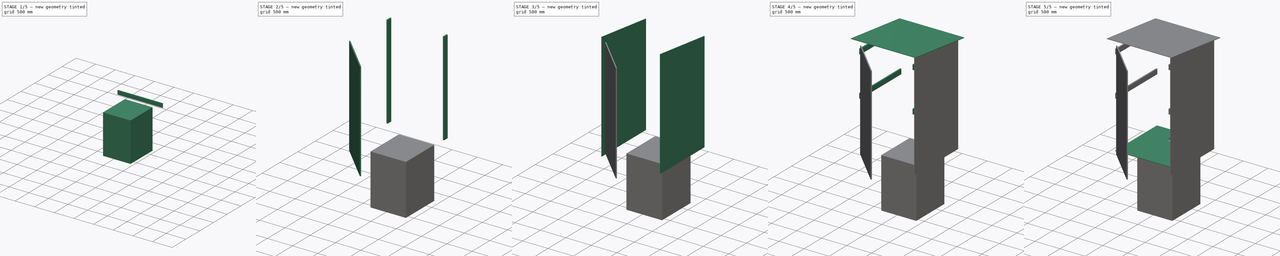
[diagram: build sequence overview — one tinted view per stage of 5, left to right]
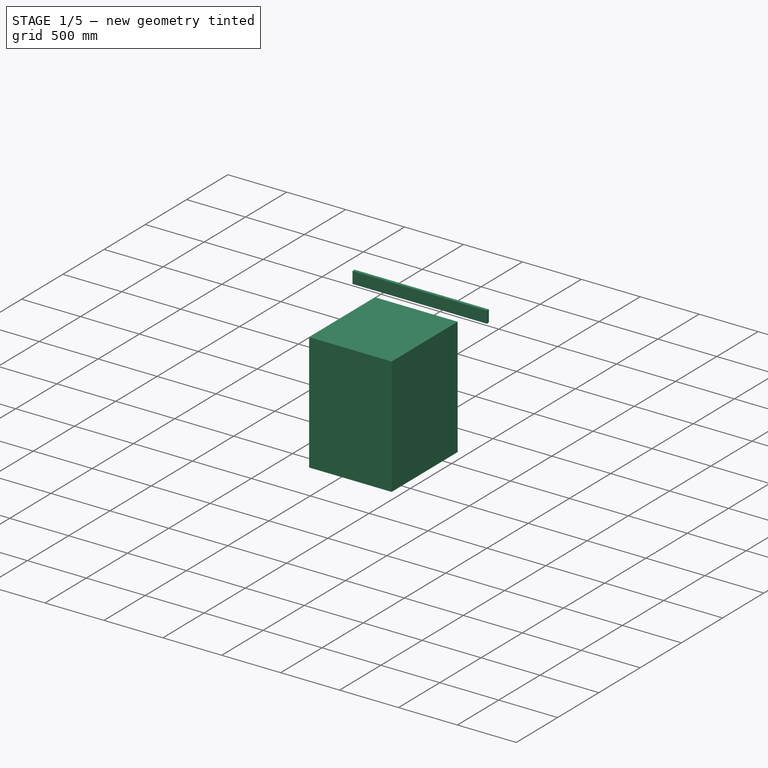
[diagram: stage 1 of 5 — iso view after this stage's code; geometry added in this stage tinted green]
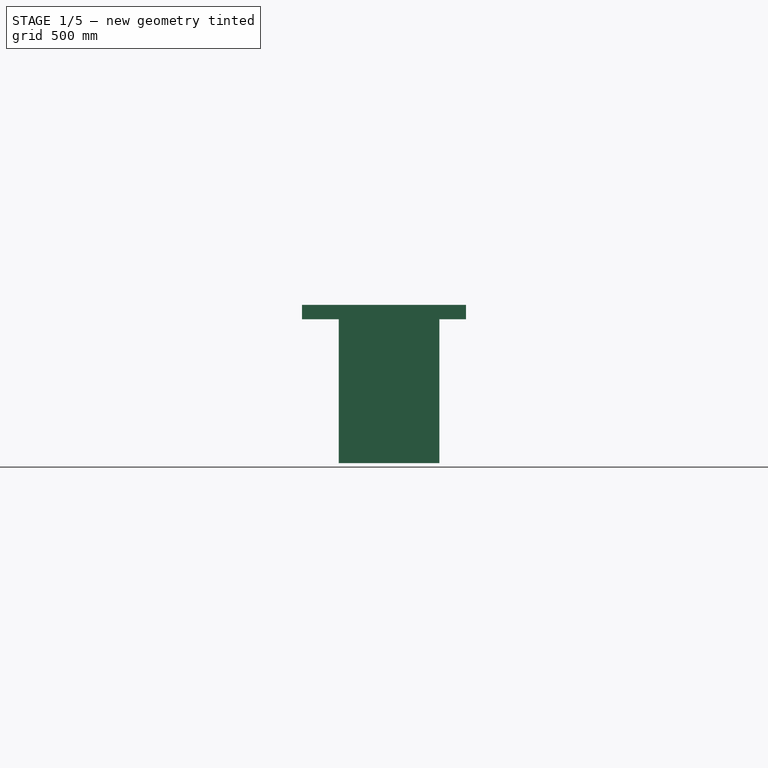
[diagram: stage 1 of 5 — front view after this stage's code; geometry added in this stage tinted green]
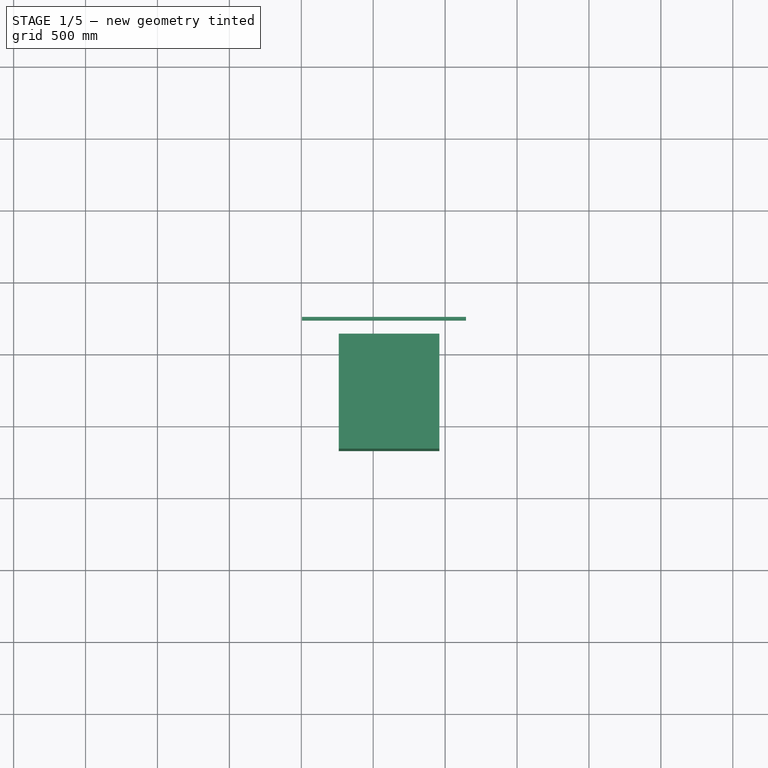
[diagram: stage 1 of 5 — top view after this stage's code; geometry added in this stage tinted green]
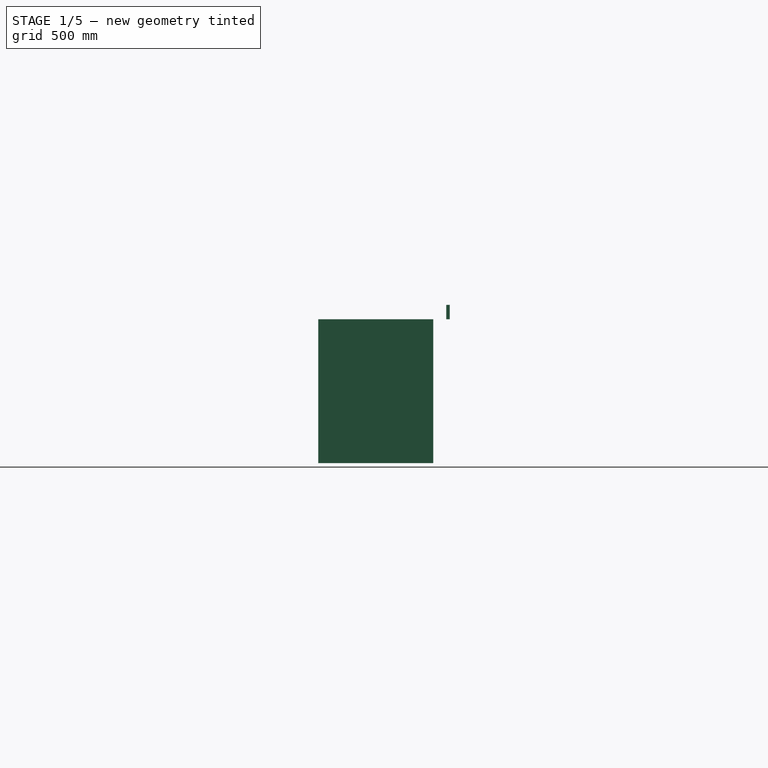
[diagram: stage 1 of 5 — right view after this stage's code; geometry added in this stage tinted green]
FCSTD DOCUMENT  (FreeCAD 1.0R39109 (Git))
Label: Туалет
License: All rights reserved
objects: Sketcher::SketchObject×23, Part::Extrusion×22, TechDraw::DrawViewDimension×19, Part::FeaturePython×7, App::FeaturePython×4, Part::Part2DObjectPython×3, App::GeometryPython×3, App::DocumentObjectGroup×2, TechDraw::DrawSVGTemplate×2, TechDraw::DrawProjGroupItem×2, TechDraw::DrawPage×2, Part::Cut×1
note: 122 computed .brp shape members not serialized (recipe doc carries the construction recipe); baked Part::Feature solids carry a one-line shape summary decoded from their .brp

FEATURE [Part::Part2DObjectPython] Rectangle  label="Контур Строения"  # Draft 2D object (typed FeaturePython)
  Area = 0
  ChamferSize = 0
  Columns = 1
  FilletRadius = 0
  Height = 1250
  Length = 1150
  MakeFace = false
  Rows = 1
FEATURE [App::FeaturePython] Text  label="Название Строения"  # WARN: FeaturePython — macro-defined, semantics opaque (R4)
  Placement = pos=(120,-476,0) rot=(0,0,1;0rad)
  Text = Туалет дачный временный
FEATURE [Part::FeaturePython] Axis  label="Вертикальные Оси"  # WARN: FeaturePython — macro-defined, semantics opaque (R4)
  Angles = [0,0]
  Distances = [0,1150]
  Length = 1375
  Limit = 0
  Placement = pos=(0,-68.75,0) rot=(0,0,1;0rad)
  expr: .Placement.Base.x = Rectangle.Placement.Base.x
  expr: .Placement.Base.y = Rectangle.Placement.Base.y - Length * 0.05
  expr: Length = Rectangle.Height * 1.1
FEATURE [Part::FeaturePython] Axis001  label="Горизонтальные оси"  # WARN: FeaturePython — macro-defined, semantics opaque (R4)
  Angles = [0,0]
  Distances = [0,1250]
  Length = 1265
  Limit = 0
  Placement = pos=(1195.42,0,0) rot=(0,0,1;1.5708rad)
  expr: .Placement.Base.x = Rectangle.Placement.Base.x + Length * 0.945
  expr: .Placement.Base.y = Rectangle.Placement.Base.y
  expr: Length = Rectangle.Length * 1.1
FEATURE [App::FeaturePython] AxisSystem  label="Оси"  # WARN: FeaturePython — macro-defined, semantics opaque (R4)
  Axes = -> [Axis001,Axis]
FEATURE [App::DocumentObjectGroup] App__DocumentObjectGroup  label="Разметка Строения"
  Group = -> [Rectangle,Text,AxisSystem]
FEATURE [App::GeometryPython] BuildingPart  label="Туалет дачный временный"  # Arch/BIM 10 (typed FeaturePython)
  Area = 0
  BuildingType = 0
  CompositionType = 0
  ElevationOfRefHeight = 0
  ElevationOfTerrain = 0
  Group = -> [App__DocumentObjectGroup]
  Height = 0
  HeightPropagate = true
  IfcData = attributes={"GlobalId": {"name": "GlobalId", "type": "IfcGloballyUniqueId", "is_enum": false, "enum_values": []}, "Description": {"... (+1017 chars omitted),+1 more (map truncated)
  IfcType = 10
  LevelOffset = 0
  LongName = Здание
  OnlySolids = true
FEATURE [Part::FeaturePython] Site  label="Участок по умолчанию"  # Arch/BIM 117 (typed FeaturePython)
  AdditionVolume = 0
  CompositionType = 0
  Declination = 0
  Elevation = 0
  ExtrusionVector = (0,0,-100000)
  Group = -> [BuildingPart]
  IfcData = attributes={"GlobalId": {"name": "GlobalId", "type": "IfcGloballyUniqueId", "is_enum": false, "enum_values": []}, "Description": {"... (+1094 chars omitted),+1 more (map truncated)
  IfcType = 117
  Latitude = 0
  LongName = Местность
  Longitude = 0
  OriginOffset = (0,0,0)
  Perimeter = 0
  ProjectedArea = 0
  RefElevation = 0
  RemoveSplitter = false
  SubtractionVolume = 0
  TimeZone = 0
  expr: RefElevation = .Elevation.Value
FEATURE [Sketcher::SketchObject] Sketch
  ArcFitTolerance = 1e-06
  ExternalGeometry = -> [Rectangle]
  FullyConstrained = true
  MakeInternals = false
  sketch-geometry (4):
    g0: LineSegment StartX=260 StartY=1130 StartZ=0 EndX=260 EndY=330 EndZ=0
    g1: LineSegment StartX=260 StartY=330 StartZ=0 EndX=960 EndY=330 EndZ=0
    g2: LineSegment StartX=960 StartY=330 StartZ=0 EndX=960 EndY=1130 EndZ=0
    g3: LineSegment StartX=960 StartY=1130 StartZ=0 EndX=260 EndY=1130 EndZ=0
  constraints (12):
    c: Coincident(g0,g1)
    c: Coincident(g1,g2)
    c: Coincident(g2,g3)
    c: Coincident(g3,g0)
    c: Vertical(g0)
    c: Vertical(g2)
    c: Horizontal(g1)
    c: Horizontal(g3)
    c: DistanceX(g3,g3) = 700
    c: DistanceY(g0,g0) = 800
    c: Distance(g-3,g3) = 120
    c: Distance(g2,g-5) = 190
FEATURE [Part::Extrusion] Extrude
  Base = -> Sketch
  Dir = (0,0,1)
  DirMode = 2
  FaceMakerClass = Part::FaceMakerBullseye
  FaceMakerMode = 3
  LengthFwd = 1000
  LengthRev = 0
  Placement = pos=(0,0,-1000) rot=(0,0,1;0rad)
  Solid = true
  Symmetric = false
FEATURE [App::GeometryPython] BuildingPart001  label="Уровень ямы"  # Arch/BIM 14 (typed FeaturePython)
  Area = 0
  CompositionType = 0
  Elevation = -1000
  Group = -> [Extrude]
  Height = 0
  HeightPropagate = true
  IfcData = attributes={"GlobalId": {"name": "GlobalId", "type": "IfcGloballyUniqueId", "is_enum": false, "enum_values": []}, "Description": {"... (+900 chars omitted),+1 more (map truncated)
  IfcType = 14
  LevelOffset = 0
  LongName = Уровень
  MaterialsTable = Undefined=0
  OnlySolids = true
  Placement = pos=(0,0,-1000) rot=(0,0,1;0rad)
  expr: Elevation = .Placement.Base.z
FEATURE [Sketcher::SketchObject] Sketch001
  ArcFitTolerance = 1e-06
  ExternalGeometry = -> [Rectangle]
  FullyConstrained = true
  MakeInternals = false
  sketch-geometry (16):
    g0: LineSegment StartX=1120 StartY=1180 StartZ=0 EndX=1120 EndY=1220 EndZ=0
    g1: LineSegment StartX=1120 StartY=1220 StartZ=0 EndX=1100 EndY=1220 EndZ=0
    g2: LineSegment StartX=1100 StartY=1220 StartZ=0 EndX=1100 EndY=1180 EndZ=0
    g3: LineSegment StartX=1100 StartY=1180 StartZ=0 EndX=1120 EndY=1180 EndZ=0
    g4: LineSegment StartX=30 StartY=1220 StartZ=0 EndX=30 EndY=1180 EndZ=0
    g5: LineSegment StartX=30 StartY=1180 StartZ=0 EndX=50 EndY=1180 EndZ=0
    g6: LineSegment StartX=50 StartY=1180 StartZ=0 EndX=50 EndY=1220 EndZ=0
    g7: LineSegment StartX=50 StartY=1220 StartZ=0 EndX=30 EndY=1220 EndZ=0
    g8: LineSegment StartX=30 StartY=70 StartZ=0 EndX=30 EndY=30 EndZ=0
    g9: LineSegment StartX=30 StartY=30 StartZ=0 EndX=50 EndY=30 EndZ=0
    g10: LineSegment StartX=50 StartY=30 StartZ=0 EndX=50 EndY=70 EndZ=0
    g11: LineSegment StartX=50 StartY=70 StartZ=0 EndX=30 EndY=70 EndZ=0
    g12: LineSegment StartX=1120 StartY=70 StartZ=0 EndX=1120 EndY=30 EndZ=0
    g13: LineSegment StartX=1120 StartY=30 StartZ=0 EndX=1100 EndY=30 EndZ=0
    g14: LineSegment StartX=1100 StartY=30 StartZ=0 EndX=1100 EndY=70 EndZ=0
    g15: LineSegment StartX=1100 StartY=70 StartZ=0 EndX=1120 EndY=70 EndZ=0
  constraints (48):
    c: Coincident(g0,g1)
    c: Coincident(g1,g2)
    c: Coincident(g2,g3)
    c: Coincident(g3,g0)
    c: Vertical(g0)
    c: Vertical(g2)
    c: Horizontal(g1)
    c: Horizontal(g3)
    c: Distance(g0,g2) = 20
    c: Distance(g1,g3) = 40
    c: Coincident(g4,g5)
    c: Coincident(g5,g6)
    c: Coincident(g6,g7)
    c: Coincident(g7,g4)
    c: Vertical(g4)
    c: Vertical(g6)
    c: Horizontal(g5)
    c: Horizontal(g7)
    c: DistanceX(g7,g7) = 20
    c: Coincident(g8,g9)
    c: Coincident(g9,g10)
    c: Coincident(g10,g11)
    c: Coincident(g11,g8)
    c: Vertical(g8)
    c: Vertical(g10)
    c: Horizontal(g9)
    c: Horizontal(g11)
    c: Distance(g8,g10) = 20
    c: Distance(g9,g11) = 40
    c: Distance(g8,g-6) = 30
    c: Distance(g-5,g9) = 30
    c: Coincident(g12,g13)
    c: Coincident(g13,g14)
    c: Coincident(g14,g15)
    c: Coincident(g15,g12)
    c: Vertical(g12)
    c: Vertical(g14)
    c: Horizontal(g13)
    c: Horizontal(g15)
    c: Distance(g12,g14) = 20
    c: Distance(g13,g15) = 40
    c: DistanceY(g6,g6) = 40
    c: Distance(g4,g-6) = 30
    c: Distance(g-3,g7) = 30
    c: Distance(g0,g-4) = 30
    c: Distance(g-3,g1) = 30
    c: Distance(g-5,g13) = 30
    c: Distance(g12,g-4) = 30
FEATURE [Part::Extrusion] Extrude001  label="сваи"
  Base = -> Sketch001
  Dir = (0,0,1)
  DirMode = 2
  FaceMakerClass = Part::FaceMakerBullseye
  FaceMakerMode = 3
  LengthFwd = 500
  LengthRev = 0
  Placement = pos=(0,0,-400) rot=(0,0,1;0rad)
  Solid = true
  Symmetric = false
FEATURE [Sketcher::SketchObject] Sketch002
  ArcFitTolerance = 1e-06
  ExternalGeometry = -> [Extrude001]
  FullyConstrained = true
  MakeInternals = false
  Placement = pos=(1270,50,-150) rot=(0.57735,0.57735,0.57735;2.0944rad)
  sketch-geometry (4):
    g0: LineSegment StartX=-20 StartY=250 StartZ=0 EndX=-20 EndY=150 EndZ=0
    g1: LineSegment StartX=-20 StartY=150 StartZ=0 EndX=1170 EndY=150 EndZ=0
    g2: LineSegment StartX=1170 StartY=150 StartZ=0 EndX=1170 EndY=250 EndZ=0
    g3: LineSegment StartX=1170 StartY=250 StartZ=0 EndX=-20 EndY=250 EndZ=0
  constraints (11):
    c: Coincident(g0,g1)
    c: Coincident(g1,g2)
    c: Coincident(g2,g3)
    c: Coincident(g3,g0)
    c: Vertical(g0)
    c: Vertical(g2)
    c: Horizontal(g1)
    c: Horizontal(g3)
    c: Distance(g1,g3) = 100
    c: Coincident(g0,g-4)
    c: DistanceX(g3,g3) = 1190
FEATURE [Part::FeaturePython] Structure  label="Доска1"  # Arch/BIM 13 (typed FeaturePython)
  Base = -> Sketch002
  BaseMirror = false
  BaseOffsetX = 0
  BaseOffsetY = 0
  BasePerpendicularToTool = false
  BaseRotation = 0
  ComputedLength = 25
  FaceMaker = 0
  Height = 25
  HorizontalArea = 29750
  IfcData = attributes={"GlobalId": {"name": "GlobalId", "type": "IfcGloballyUniqueId", "is_enum": false, "enum_values": []}, "Description": {"... (+484 chars omitted),+1 more (map truncated)
  IfcType = 13
  Length = 0
  MoveBase = false
  MoveWithHost = false
  Nodes = (2) [(1270,625,50),(1295,625,50)]
  NodesOffset = 0
  Normal = (0,0,0)
  PerimeterLength = 2430
  Placement = pos=(-150,1.705e-13,1.563e-13) rot=(0,0,1;0rad)
  PredefinedType = 0
  ToolOffsetFirst = 0
  ToolOffsetLast = 0
  VerticalArea = 243000
  Width = 100
FEATURE [Sketcher::SketchObject] Sketch003
  ArcFitTolerance = 1e-06
  ExternalGeometry = -> [Extrude001]
  FullyConstrained = true
  MakeInternals = false
  Placement = pos=(30,50,-150) rot=(0.57735,-0.57735,-0.57735;2.0944rad)
  sketch-geometry (4):
    g0: LineSegment StartX=-1170 StartY=250 StartZ=0 EndX=-1170 EndY=150 EndZ=0
    g1: LineSegment StartX=-1170 StartY=150 StartZ=0 EndX=20 EndY=150 EndZ=0
    g2: LineSegment StartX=20 StartY=150 StartZ=0 EndX=20 EndY=250 EndZ=0
    g3: LineSegment StartX=20 StartY=250 StartZ=0 EndX=-1170 EndY=250 EndZ=0
  constraints (11):
    c: Coincident(g0,g1)
    c: Coincident(g1,g2)
    c: Coincident(g2,g3)
    c: Coincident(g3,g0)
    c: Vertical(g0)
    c: Vertical(g2)
    c: Horizontal(g1)
    c: Horizontal(g3)
    c: Distance(g1,g3) = 100
    c: Coincident(g0,g-4)
    c: PointOnObject(g1,g-8)
FEATURE [Part::FeaturePython] Structure001  label="Доска2"  # Arch/BIM 13 (typed FeaturePython)
  Base = -> Sketch003
  BaseMirror = false
  BaseOffsetX = 0
  BaseOffsetY = 0
  BasePerpendicularToTool = false
  BaseRotation = 0
  ComputedLength = 25
  FaceMaker = 0
  Height = 25
  HorizontalArea = 29750
  IfcData = attributes={"GlobalId": {"name": "GlobalId", "type": "IfcGloballyUniqueId", "is_enum": false, "enum_values": []}, "Description": {"... (+484 chars omitted),+1 more (map truncated)
  IfcType = 13
  Length = 0
  MoveBase = false
  MoveWithHost = false
  Nodes = (2) [(30,625,50),(5,625,50)]
  NodesOffset = 0
  Normal = (0,0,0)
  PerimeterLength = 2430
  PredefinedType = 0
  ToolOffsetFirst = 0
  ToolOffsetLast = 0
  VerticalArea = 243000
  Width = 100
FEATURE [Sketcher::SketchObject] Sketch005
  ArcFitTolerance = 1e-06
  ExternalGeometry = -> [Structure,Structure001]
  FullyConstrained = true
  MakeInternals = false
  Placement = pos=(1110,1220,-150) rot=(0,0.707107,0.707107;3.14159rad)
  sketch-geometry (4):
    g0: LineSegment StartX=-35 StartY=250 StartZ=0 EndX=-35 EndY=150 EndZ=0
    g1: LineSegment StartX=-35 StartY=150 StartZ=0 EndX=1105 EndY=150 EndZ=0
    g2: LineSegment StartX=1105 StartY=150 StartZ=0 EndX=1105 EndY=250 EndZ=0
    g3: LineSegment StartX=1105 StartY=250 StartZ=0 EndX=-35 EndY=250 EndZ=0
  constraints (10):
    c: Coincident(g0,g1)
    c: Coincident(g1,g2)
    c: Coincident(g2,g3)
    c: Coincident(g3,g0)
    c: Vertical(g0)
    c: Vertical(g2)
    c: Horizontal(g1)
    c: Horizontal(g3)
    c: Coincident(g0,g-4)
    c: Coincident(g1,g-6)
FEATURE [Part::FeaturePython] Structure003  label="Доска4"  # Arch/BIM 13 (typed FeaturePython)
  Base = -> Sketch005
  BaseMirror = false
  BaseOffsetX = 0
  BaseOffsetY = 0
  BasePerpendicularToTool = false
  BaseRotation = 0
  ComputedLength = 25
  FaceMaker = 0
  Height = 25
  HorizontalArea = 28500
  IfcData = attributes={"GlobalId": {"name": "GlobalId", "type": "IfcGloballyUniqueId", "is_enum": false, "enum_values": []}, "Description": {"... (+484 chars omitted),+1 more (map truncated)
  IfcType = 13
  Length = 0
  MoveBase = false
  MoveWithHost = false
  Nodes = (2) [(575,1220,50),(575,1245,50)]
  NodesOffset = 0
  Normal = (0,0,0)
  PerimeterLength = 2330
  PredefinedType = 0
  ToolOffsetFirst = 0
  ToolOffsetLast = 0
  VerticalArea = 233000
  Width = 100
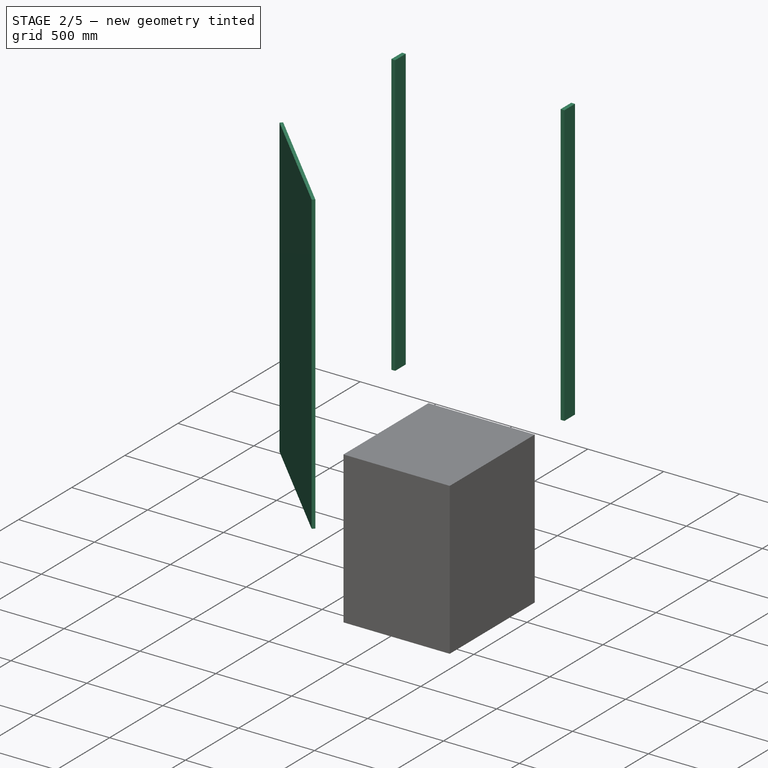
[diagram: stage 2 of 5 — iso view after this stage's code; geometry added in this stage tinted green]
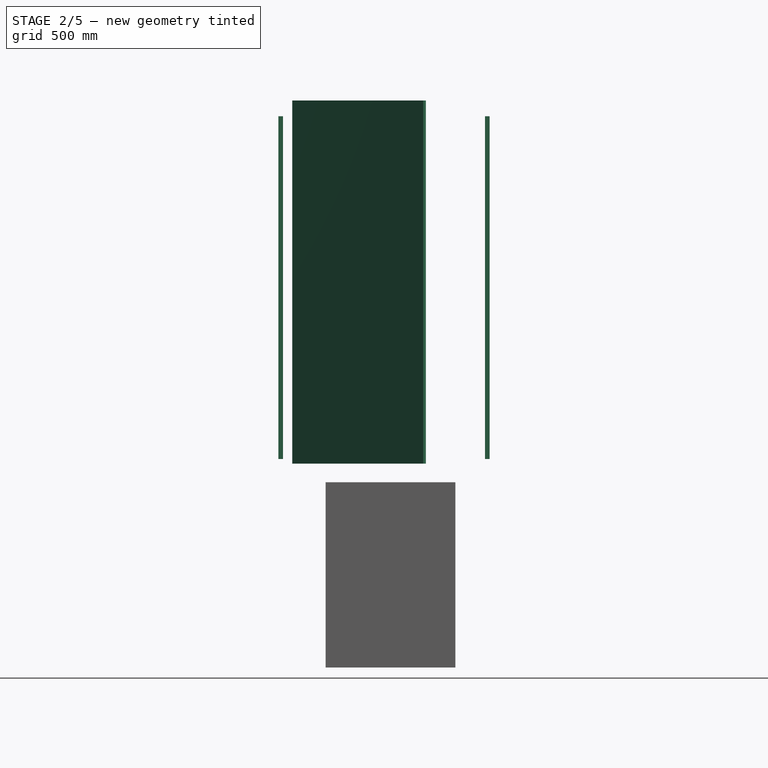
[diagram: stage 2 of 5 — front view after this stage's code; geometry added in this stage tinted green]
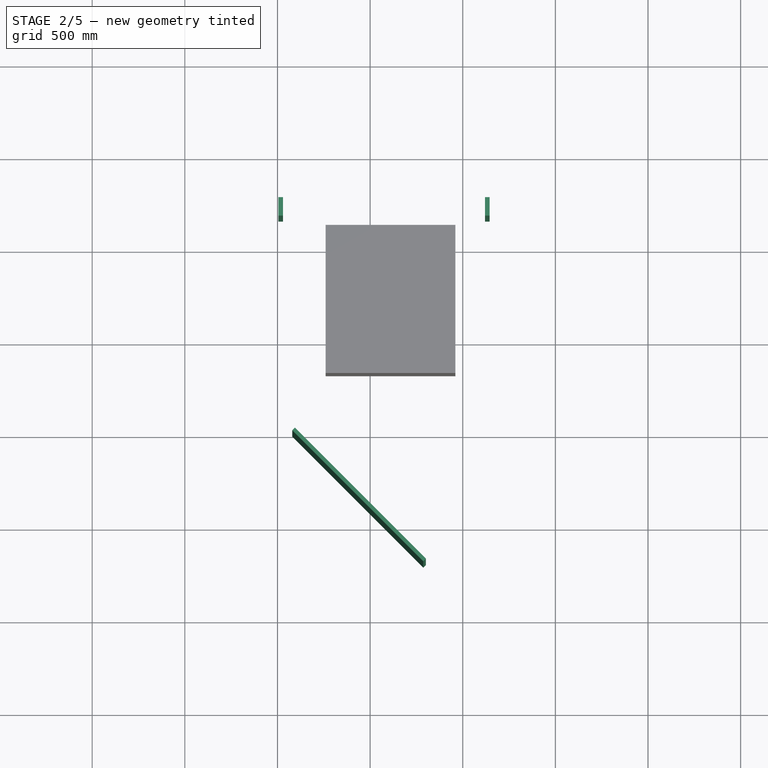
[diagram: stage 2 of 5 — top view after this stage's code; geometry added in this stage tinted green]
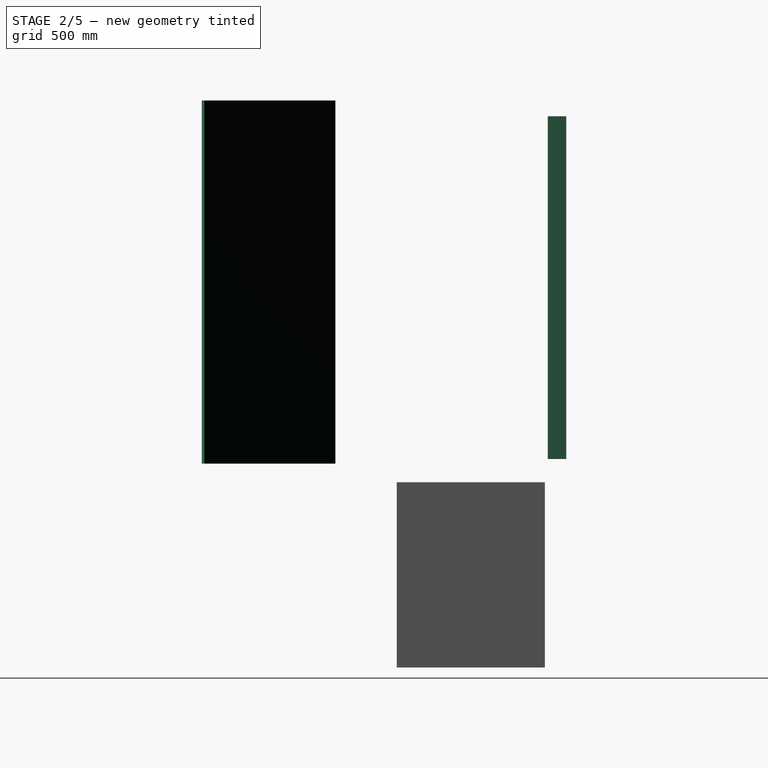
[diagram: stage 2 of 5 — right view after this stage's code; geometry added in this stage tinted green]
FEATURE [Sketcher::SketchObject] Sketch004
  ArcFitTolerance = 1e-06
  ExternalGeometry = -> [Structure001,Structure]
  FullyConstrained = true
  MakeInternals = false
  Placement = pos=(40,30,-150) rot=(1,0,0;1.5708rad)
  sketch-geometry (4):
    g0: LineSegment StartX=-35 StartY=250 StartZ=0 EndX=-35 EndY=150 EndZ=0
    g1: LineSegment StartX=-35 StartY=150 StartZ=0 EndX=1105 EndY=150 EndZ=0
    g2: LineSegment StartX=1105 StartY=150 StartZ=0 EndX=1105 EndY=250 EndZ=0
    g3: LineSegment StartX=1105 StartY=250 StartZ=0 EndX=-35 EndY=250 EndZ=0
  constraints (10):
    c: Coincident(g0,g1)
    c: Coincident(g1,g2)
    c: Coincident(g2,g3)
    c: Coincident(g3,g0)
    c: Vertical(g0)
    c: Vertical(g2)
    c: Horizontal(g1)
    c: Horizontal(g3)
    c: Coincident(g0,g-4)
    c: Coincident(g1,g-6)
FEATURE [Part::FeaturePython] Structure002  label="Доска3"  # Arch/BIM 13 (typed FeaturePython)
  Base = -> Sketch004
  BaseMirror = false
  BaseOffsetX = 0
  BaseOffsetY = 0
  BasePerpendicularToTool = false
  BaseRotation = 0
  ComputedLength = 25
  FaceMaker = 0
  Height = 25
  HorizontalArea = 28500
  IfcData = attributes={"GlobalId": {"name": "GlobalId", "type": "IfcGloballyUniqueId", "is_enum": false, "enum_values": []}, "Description": {"... (+484 chars omitted),+1 more (map truncated)
  IfcType = 13
  Length = 0
  MoveBase = false
  MoveWithHost = false
  Nodes = (2) [(575,30,50),(575,5,50)]
  NodesOffset = 0
  Normal = (0,0,0)
  PerimeterLength = 2330
  PredefinedType = 0
  ToolOffsetFirst = 0
  ToolOffsetLast = 0
  VerticalArea = 233000
  Width = 100
FEATURE [Sketcher::SketchObject] Sketch008
  ArcFitTolerance = 1e-06
  ExternalGeometry = -> [Structure002,Structure,Structure001,Structure003]
  FullyConstrained = true
  MakeInternals = false
  Placement = pos=(1132.5,625,100) rot=(0,0,1;3.14159rad)
  sketch-geometry (12):
    g0: LineSegment StartX=-12.5 StartY=620 StartZ=0 EndX=-12.5 EndY=520 EndZ=0
    g1: LineSegment StartX=-12.5 StartY=520 StartZ=0 EndX=1127.5 EndY=520 EndZ=0
    g2: LineSegment StartX=1127.5 StartY=520 StartZ=0 EndX=1127.5 EndY=620 EndZ=0
    g3: LineSegment StartX=1127.5 StartY=620 StartZ=0 EndX=-12.5 EndY=620 EndZ=0
    g4: LineSegment StartX=-12.5 StartY=-620 StartZ=0 EndX=1127.5 EndY=-620 EndZ=0
    g5: LineSegment StartX=1127.5 StartY=-620 StartZ=0 EndX=1127.5 EndY=-520 EndZ=0
    g6: LineSegment StartX=1127.5 StartY=-520 StartZ=0 EndX=-12.5 EndY=-520 EndZ=0
    g7: LineSegment StartX=-12.5 StartY=-520 StartZ=0 EndX=-12.5 EndY=-620 EndZ=0
    g8: LineSegment StartX=-12.5 StartY=100 StartZ=0 EndX=-12.5 EndY=0 EndZ=0
    g9: LineSegment StartX=-12.5 StartY=0 StartZ=0 EndX=1127.5 EndY=0 EndZ=0
    g10: LineSegment StartX=1127.5 StartY=0 StartZ=0 EndX=1127.5 EndY=100 EndZ=0
    g11: LineSegment StartX=1127.5 StartY=100 StartZ=0 EndX=-12.5 EndY=100 EndZ=0
  constraints (34):
    c: Coincident(g0,g1)
    c: Coincident(g1,g2)
    c: Coincident(g2,g3)
    c: Coincident(g3,g0)
    c: Vertical(g0)
    c: Vertical(g2)
    c: Horizontal(g1)
    c: Horizontal(g3)
    c: Distance(g1,g3) = 100
    c: Coincident(g0,g-3)
    c: PointOnObject(g1,g-6)
    c: Coincident(g4,g5)
    c: Coincident(g5,g6)
    c: Coincident(g6,g7)
    c: Coincident(g7,g4)
    c: Horizontal(g4)
    c: Horizontal(g6)
    c: Vertical(g5)
    c: Vertical(g7)
    c: Distance(g4,g6) = 100
    c: Coincident(g4,g-7)
    c: PointOnObject(g5,g-6)
    c: Coincident(g8,g9)
    c: Coincident(g9,g10)
    c: Coincident(g10,g11)
    c: Coincident(g11,g8)
    c: Vertical(g8)
    c: Vertical(g10)
    c: Horizontal(g9)
    c: Horizontal(g11)
    c: Distance(g8,g10) = 1140
    c: Distance(g9,g11) = 100
    c: PointOnObject(g8,g-4)
    c: PointOnObject(g9,g-1)
FEATURE [Part::Extrusion] Extrude004  label="Три доски"
  Base = -> Sketch008
  Dir = (0,0,1)
  DirMode = 2
  FaceMakerClass = Part::FaceMakerBullseye
  FaceMakerMode = 3
  LengthFwd = 25
  LengthRev = 0
  Solid = true
  Symmetric = false
FEATURE [Sketcher::SketchObject] Sketch009
  ArcFitTolerance = 1e-06
  ExternalGeometry = -> [Extrude004]
  FullyConstrained = true
  MakeInternals = false
  Placement = pos=(575,1195,125) rot=(0,0,1;0rad)
  sketch-geometry (8):
    g0: LineSegment StartX=-570 StartY=50 StartZ=0 EndX=-570 EndY=-50 EndZ=0
    g1: LineSegment StartX=-570 StartY=-50 StartZ=0 EndX=-545 EndY=-50 EndZ=0
    g2: LineSegment StartX=-545 StartY=-50 StartZ=0 EndX=-545 EndY=50 EndZ=0
    g3: LineSegment StartX=-545 StartY=50 StartZ=0 EndX=-570 EndY=50 EndZ=0
    g4: LineSegment StartX=570 StartY=50 StartZ=0 EndX=545 EndY=50 EndZ=0
    g5: LineSegment StartX=545 StartY=50 StartZ=0 EndX=545 EndY=-50 EndZ=0
    g6: LineSegment StartX=545 StartY=-50 StartZ=0 EndX=570 EndY=-50 EndZ=0
    g7: LineSegment StartX=570 StartY=-50 StartZ=0 EndX=570 EndY=50 EndZ=0
  constraints (22):
    c: Coincident(g0,g1)
    c: Coincident(g1,g2)
    c: Coincident(g2,g3)
    c: Coincident(g3,g0)
    c: Vertical(g0)
    c: Vertical(g2)
    c: Horizontal(g1)
    c: Horizontal(g3)
    c: Distance(g0,g2) = 25
    c: Distance(g1,g3) = 100
    c: Coincident(g0,g-4)
    c: Coincident(g4,g5)
    c: Coincident(g5,g6)
    c: Coincident(g6,g7)
    c: Coincident(g7,g4)
    c: Horizontal(g4)
    c: Horizontal(g6)
    c: Vertical(g5)
    c: Vertical(g7)
    c: Distance(g5,g7) = 25
    c: Distance(g4,g6) = 100
    c: Coincident(g4,g-7)
FEATURE [Part::Extrusion] Extrude005  label="Задние стойки1"
  Base = -> Sketch009
  Dir = (0,0,1)
  DirMode = 2
  FaceMakerClass = Part::FaceMakerBullseye
  FaceMakerMode = 3
  LengthFwd = 1850
  LengthRev = 0
  Solid = true
  Symmetric = false
FEATURE [Sketcher::SketchObject] Sketch011
  ArcFitTolerance = 1e-06
  ExternalGeometry = -> [Extrude004]
  FullyConstrained = true
  MakeInternals = false
  Placement = pos=(575,55,125) rot=(0,0,1;0rad)
  sketch-geometry (16):
    g0: LineSegment StartX=-570 StartY=-50 StartZ=0 EndX=-545 EndY=-50 EndZ=0
    g1: LineSegment StartX=-545 StartY=-50 StartZ=0 EndX=-545 EndY=50 EndZ=0
    g2: LineSegment StartX=-545 StartY=50 StartZ=0 EndX=-570 EndY=50 EndZ=0
    g3: LineSegment StartX=-570 StartY=50 StartZ=0 EndX=-570 EndY=-50 EndZ=0
    g4: LineSegment StartX=570 StartY=-50 StartZ=0 EndX=570 EndY=50 EndZ=0
    g5: LineSegment StartX=570 StartY=50 StartZ=0 EndX=545 EndY=50 EndZ=0
    g6: LineSegment StartX=545 StartY=50 StartZ=0 EndX=545 EndY=-50 EndZ=0
    g7: LineSegment StartX=545 StartY=-50 StartZ=0 EndX=570 EndY=-50 EndZ=0
    g8: LineSegment StartX=545 StartY=-50 StartZ=0 EndX=545 EndY=-25 EndZ=0
    g9: LineSegment StartX=545 StartY=-25 StartZ=0 EndX=445 EndY=-25 EndZ=0
    g10: LineSegment StartX=445 StartY=-25 StartZ=0 EndX=445 EndY=-50 EndZ=0
    g11: LineSegment StartX=445 StartY=-50 StartZ=0 EndX=545 EndY=-50 EndZ=0
    g12: LineSegment StartX=-545 StartY=-50 StartZ=0 EndX=-445 EndY=-50 EndZ=0
    g13: LineSegment StartX=-445 StartY=-50 StartZ=0 EndX=-445 EndY=-25 EndZ=0
    g14: LineSegment StartX=-445 StartY=-25 StartZ=0 EndX=-545 EndY=-25 EndZ=0
    g15: LineSegment StartX=-545 StartY=-25 StartZ=0 EndX=-545 EndY=-50 EndZ=0
  constraints (44):
    c: Coincident(g0,g1)
    c: Coincident(g1,g2)
    c: Coincident(g2,g3)
    c: Coincident(g3,g0)
    c: Horizontal(g0)
    c: Horizontal(g2)
    c: Vertical(g1)
    c: Vertical(g3)
    c: Distance(g1,g3) = 25
    c: Coincident(g0,g-5)
    c: PointOnObject(g1,g-3)
    c: Coincident(g4,g5)
    c: Coincident(g5,g6)
    c: Coincident(g6,g7)
    c: Coincident(g7,g4)
    c: Vertical(g4)
    c: Vertical(g6)
    c: Horizontal(g5)
    c: Horizontal(g7)
    c: Distance(g4,g6) = 25
    c: Coincident(g4,g-6)
    c: PointOnObject(g5,g-3)
    c: Coincident(g8,g9)
    c: Coincident(g9,g10)
    c: Coincident(g10,g11)
    c: Coincident(g11,g8)
    c: Vertical(g8)
    c: Vertical(g10)
    c: Horizontal(g9)
    c: Horizontal(g11)
    c: Distance(g8,g10) = 100
    c: Distance(g9,g11) = 25
    c: Coincident(g8,g6)
    c: Coincident(g12,g13)
    c: Coincident(g13,g14)
    c: Coincident(g14,g15)
    c: Coincident(g15,g12)
    c: Horizontal(g12)
    c: Horizontal(g14)
    c: Vertical(g13)
    c: Vertical(g15)
    c: Distance(g13,g15) = 100
    c: Distance(g12,g14) = 25
    c: Coincident(g12,g0)
FEATURE [Part::Extrusion] Extrude007  label="Передние стойки"
  Base = -> Sketch011
  Dir = (0,0,1)
  DirMode = 2
  FaceMakerClass = Part::FaceMakerBullseye
  FaceMakerMode = 3
  LengthFwd = 2000
  LengthRev = 0
  Solid = true
  Symmetric = false
FEATURE [Sketcher::SketchObject] Sketch012
  ArcFitTolerance = 1e-06
  ExternalGeometry = -> [Extrude007]
  FullyConstrained = true
  MakeInternals = false
  Placement = pos=(80,30,1125) rot=(0,0.707107,0.707107;3.14159rad)
  sketch-geometry (4):
    g0: LineSegment StartX=50 StartY=1000 StartZ=0 EndX=-1040 EndY=1000 EndZ=0
    g1: LineSegment StartX=-1040 StartY=1000 StartZ=0 EndX=-1040 EndY=900 EndZ=0
    g2: LineSegment StartX=-1040 StartY=900 StartZ=0 EndX=50 EndY=900 EndZ=0
    g3: LineSegment StartX=50 StartY=900 StartZ=0 EndX=50 EndY=1000 EndZ=0
  constraints (11):
    c: Coincident(g0,g1)
    c: Coincident(g1,g2)
    c: Coincident(g2,g3)
    c: Coincident(g3,g0)
    c: Horizontal(g0)
    c: Horizontal(g2)
    c: Vertical(g1)
    c: Vertical(g3)
    c: Distance(g1,g3) = 1090
    c: Distance(g0,g2) = 100
    c: Coincident(g0,g-4)
FEATURE [Part::Extrusion] Extrude008  label="Верхняя перемычка"
  Base = -> Sketch012
  Dir = (0,1,-2e-16)
  DirMode = 2
  FaceMakerClass = Part::FaceMakerBullseye
  FaceMakerMode = 3
  LengthFwd = 25
  LengthRev = 0
  Solid = true
  Symmetric = false
FEATURE [Sketcher::SketchObject] Sketch022
  ArcFitTolerance = 1e-06
  ExternalGeometry = -> [Extrude008,Extrude007,Structure002]
  FullyConstrained = true
  MakeInternals = false
  Placement = pos=(80,5,1125) rot=(1,0,0;1.5708rad)
  sketch-geometry (4):
    g0: LineSegment StartX=0 StartY=935 StartZ=0 EndX=0 EndY=-1025 EndZ=0
    g1: LineSegment StartX=0 StartY=-1025 StartZ=0 EndX=1000 EndY=-1025 EndZ=0
    g2: LineSegment StartX=1000 StartY=-1025 StartZ=0 EndX=1000 EndY=935 EndZ=0
    g3: LineSegment StartX=1000 StartY=935 StartZ=0 EndX=0 EndY=935 EndZ=0
  constraints (12):
    c: Coincident(g0,g1)
    c: Coincident(g1,g2)
    c: Coincident(g2,g3)
    c: Coincident(g3,g0)
    c: Vertical(g0)
    c: Vertical(g2)
    c: Horizontal(g1)
    c: Horizontal(g3)
    c: PointOnObject(g0,g-2)
    c: PointOnObject(g1,g-6)
    c: DistanceY(g2,g2) = 1960
    c: DistanceX(g3,g3) = 1000
FEATURE [Part::Extrusion] Extrude021  label="Полотно двери"
  Base = -> Sketch022
  Dir = (0,-1,2e-16)
  DirMode = 2
  FaceMakerClass = Part::FaceMakerBullseye
  FaceMakerMode = 3
  LengthFwd = 20
  LengthRev = 0
  Placement = pos=(34.0381,52.1751,0) rot=(0,0,1;5.49779rad)
  Solid = true
  Symmetric = false
FEATURE [App::GeometryPython] BuildingPart002  label="Уровень пола"  # Arch/BIM 14 (typed FeaturePython)
  Area = 0
  CompositionType = 0
  Elevation = 0
  Group = -> [Extrude001,Structure,Structure001,Structure002,Structure003,Extrude002,Extrude003,Extrude004,Extrude005,Extrude006,Extrude007,Extrude008,Extrude009,Extrude010,Extrude011,Extrude012,Extrude013,Cut,Extrude016,Extrude017,Extrude018,Extrude019,Extrude020,Extrude021]
  Height = 0
  HeightPropagate = true
  IfcData = attributes={"GlobalId": {"name": "GlobalId", "type": "IfcGloballyUniqueId", "is_enum": false, "enum_values": []}, "Description": {"... (+885 chars omitted),+1 more (map truncated)
  IfcType = 14
  LevelOffset = 0
  LongName = Уровень001
  MaterialsTable = Undefined=0,1,2,3,4,5,6,7,8,9,10,11,12,13,14,15,16,17,18,19,20,21,22,23,24,25,26,27,28,29,30,31,32,33
  OnlySolids = true
  expr: Elevation = .Placement.Base.z
FEATURE [App::FeaturePython] Section  label="Разрез (Сечение)"  # WARN: FeaturePython — macro-defined, semantics opaque (R4)
  Clip = false
  Depth = 0
  Objects = -> [Extrude005,Extrude006,Extrude007,Extrude008,Extrude009,Extrude010,Extrude011,Extrude012,Extrude013,Extrude016,Extrude017,Extrude018,Extrude021]
  OnlySolids = true
  Placement = pos=(0,0,150) rot=(0,0,1;0rad)
  UseMaterialColorForFill = false
FEATURE [Part::Part2DObjectPython] Shape2DView  # Draft 2D object (typed FeaturePython)
  AutoUpdate = true
  Base = -> Section
  Clip = false
  FuseArch = false
  HiddenLines = false
  InPlace = false
  OnlySolids = false
  Placement = pos=(3148,0,0) rot=(0,0,1;0rad)
  Projection = (0,0,1)
  ProjectionMode = 0
  SegmentLength = 0.05
  Tessellation = false
  VisibleOnly = false
FEATURE [TechDraw::DrawSVGTemplate] Template  label="Шаблон"
  Height = 210
  Orientation = 1
  Template = <userpath>/AppData/Local/Programs/FreeCAD 1.0/data/Mod/TechDraw/Templates/Default_Template_A4_Landscape.svg
  Width = 297
FEATURE [TechDraw::DrawProjGroupItem] View
  CoarseView = false
  Direction = (2e-16,0,-1)
  Focus = 100
  HardHidden = false
  IsoCount = 0
  IsoHidden = false
  IsoVisible = false
  LockPosition = false
  Perspective = false
  Rotation = 0
  RotationVector = (1,0,0)
  Scale = 0.083333
  ScaleType = 2
  ScrubCount = 1
  SeamHidden = false
  SeamVisible = false
  SmoothHidden = false
  SmoothVisible = true
  Source = -> [Shape2DView]
  Type = 0
  X = 148.638
  XDirection = (-1,0,-2e-16)
  Y = 104.586
FEATURE [TechDraw::DrawViewDimension] Dimension  label="Размер"
  AngleOverride = false
  Arbitrary = false
  ArbitraryTolerances = false
  BoxCorners = (2) [(-48.3331,-82.3791,0),(48.3331,82.3791,0)]
  EqualTolerance = true
  ExtensionAngle = 0
  FormatSpec = %.2w
  FormatSpecOverTolerance = %+.2w
  FormatSpecUnderTolerance = %+.2w
  Inverted = false
  LineAngle = 0
  LockPosition = false
  MeasureType = 1
  OverTolerance = 0
  References2D = -> [View]
  Rotation = 0
  ScaleType = 0
  TheoreticalExact = false
  Type = 0
  UnderTolerance = 0
  X = -4.12678
  Y = 95.4767
FEATURE [TechDraw::DrawViewDimension] Dimension001  label="Размер001"
  AngleOverride = false
  Arbitrary = false
  ArbitraryTolerances = false
  BoxCorners = (2) [(-48.3331,-82.3791,0),(48.3331,82.3791,0)]
  EqualTolerance = true
  ExtensionAngle = 0
  FormatSpec = %.2w
  FormatSpecOverTolerance = %+.2w
  FormatSpecUnderTolerance = %+.2w
  Inverted = false
  LineAngle = 0
  LockPosition = false
  MeasureType = 1
  OverTolerance = 0
  References2D = -> [View]
  Rotation = 0
  ScaleType = 0
  TheoreticalExact = false
  Type = 2
  UnderTolerance = 0
  X = -71.9578
  Y = 35.3708
FEATURE [TechDraw::DrawViewDimension] Dimension002  label="Размер002"
  AngleOverride = false
  Arbitrary = false
  ArbitraryTolerances = false
  BoxCorners = (2) [(-48.3331,-82.3791,0),(48.3331,82.3791,0)]
  EqualTolerance = true
  ExtensionAngle = 0
  FormatSpec = %.2w
  FormatSpecOverTolerance = %+.2w
  FormatSpecUnderTolerance = %+.2w
  Inverted = false
  LineAngle = 0
  LockPosition = false
  MeasureType = 1
  OverTolerance = 0
  References2D = -> [View]
  Rotation = 0
  ScaleType = 0
  TheoreticalExact = false
  Type = 2
  UnderTolerance = 0
  X = 71.3978
  Y = 30.296
FEATURE [TechDraw::DrawViewDimension] Dimension003  label="Размер003"
  AngleOverride = false
  Arbitrary = false
  ArbitraryTolerances = false
  BoxCorners = (2) [(-48.3331,-82.3791,0),(48.3331,82.3791,0)]
  EqualTolerance = true
  ExtensionAngle = 0
  FormatSpec = %.2w
  FormatSpecOverTolerance = %+.2w
  FormatSpecUnderTolerance = %+.2w
  Inverted = false
  LineAngle = 0
  LockPosition = false
  MeasureType = 1
  OverTolerance = 0
  References2D = -> [View]
  Rotation = 0
  ScaleType = 0
  TheoreticalExact = false
  Type = 0
  UnderTolerance = 0
  X = 21.0275
  Y = -62.1568
FEATURE [TechDraw::DrawViewDimension] Dimension004  label="Размер004"
  AngleOverride = false
  Arbitrary = false
  ArbitraryTolerances = false
  BoxCorners = (2) [(-48.3331,-82.3791,0),(48.3331,82.3791,0)]
  EqualTolerance = true
  ExtensionAngle = 0
  FormatSpec = %.2w
  FormatSpecOverTolerance = %+.2w
  FormatSpecUnderTolerance = %+.2w
  Inverted = false
  LineAngle = 0
  LockPosition = false
  MeasureType = 1
  OverTolerance = 0
  References2D = -> [View]
  Rotation = 0
  ScaleType = 0
  TheoreticalExact = false
  Type = 0
  UnderTolerance = 0
  X = 0
  Y = 32.0122
FEATURE [TechDraw::DrawViewDimension] Dimension005  label="Размер005"
  AngleOverride = false
  Arbitrary = false
  ArbitraryTolerances = false
  BoxCorners = (2) [(-48.3331,-82.3791,0),(48.3331,82.3791,0)]
  EqualTolerance = true
  ExtensionAngle = 0
  FormatSpec = %.2w
  FormatSpecOverTolerance = %+.2w
  FormatSpecUnderTolerance = %+.2w
  Inverted = false
  LineAngle = 0
  LockPosition = false
  MeasureType = 1
  OverTolerance = 0
  References2D = -> [View]
  Rotation = 0
  ScaleType = 0
  TheoreticalExact = false
  Type = 1
  UnderTolerance = 0
  X = 0
  Y = 0.470895
FEATURE [TechDraw::DrawPage] Page  label="План туалета"
  KeepUpdated = true
  NextBalloonIndex = 1
  ProjectionType = 0
  Template = -> Template
  Views = -> [View,Dimension,Dimension001,Dimension002,Dimension003,Dimension004,Dimension005]
FEATURE [App::FeaturePython] Section001  label="Разрез (Сечение)001"  # WARN: FeaturePython — macro-defined, semantics opaque (R4)
  Clip = false
  Depth = 0
  Objects = -> [Extrude,Extrude001]
  OnlySolids = true
  Placement = pos=(0,0,-100) rot=(0,0,1;0rad)
  UseMaterialColorForFill = false
FEATURE [Part::Part2DObjectPython] Shape2DView001  # Draft 2D object (typed FeaturePython)
  AutoUpdate = true
  Base = -> Section001
  Clip = false
  FuseArch = false
  HiddenLines = false
  InPlace = false
  OnlySolids = false
  Placement = pos=(-2369,0,-3) rot=(0,0,1;0rad)
  Projection = (0,-1,0)
  ProjectionMode = 0
  SegmentLength = 0.05
  Tessellation = false
  VisibleOnly = false
FEATURE [TechDraw::DrawSVGTemplate] Template001  label="Шаблон001"
  Height = 210
  Orientation = 1
  Template = <userpath>/AppData/Local/Programs/FreeCAD 1.0/data/Mod/TechDraw/Templates/Default_Template_A4_Landscape.svg
  Width = 297
FEATURE [TechDraw::DrawProjGroupItem] View001
  CoarseView = false
  Direction = (0,0,1)
  Focus = 100
  HardHidden = false
  IsoCount = 0
  IsoHidden = false
  IsoVisible = false
  LockPosition = false
  Perspective = false
  Rotation = 0
  RotationVector = (1,0,0)
  Scale = 0.1
  ScaleType = 2
  ScrubCount = 1
  SeamHidden = false
  SeamVisible = false
  SmoothHidden = false
  SmoothVisible = true
  Source = -> [Shape2DView001]
  Type = 0
  X = 148.5
  XDirection = (1,0,0)
  Y = 105
FEATURE [TechDraw::DrawViewDimension] Dimension006  label="Размер006"
  AngleOverride = false
  Arbitrary = false
  ArbitraryTolerances = false
  BoxCorners = (2) [(-54.5,-59.5,0),(54.5,59.5,0)]
  EqualTolerance = true
  ExtensionAngle = 0
  FormatSpec = %.2w
  FormatSpecOverTolerance = %+.2w
  FormatSpecUnderTolerance = %+.2w
  Inverted = false
  LineAngle = 0
  LockPosition = false
  MeasureType = 1
  OverTolerance = 0
  References2D = -> [View001]
  Rotation = 0
  Scale = 5
  ScaleType = 0
  TheoreticalExact = false
  Type = 1
  UnderTolerance = 0
  X = 3.5
  Y = 14.6858
FEATURE [TechDraw::DrawViewDimension] Dimension007  label="Размер007"
  AngleOverride = false
  Arbitrary = false
  ArbitraryTolerances = false
  BoxCorners = (2) [(-54.5,-59.5,0),(54.5,59.5,0)]
  EqualTolerance = true
  ExtensionAngle = 0
  FormatSpec = %.2w
  FormatSpecOverTolerance = %+.2w
  FormatSpecUnderTolerance = %+.2w
  Inverted = false
  LineAngle = 0
  LockPosition = false
  MeasureType = 1
  OverTolerance = 0
  References2D = -> [View001]
  Rotation = 0
  Scale = 5
  ScaleType = 0
  TheoreticalExact = false
  Type = 2
  UnderTolerance = 0
  X = 44.3757
  Y = 10.5
FEATURE [TechDraw::DrawViewDimension] Dimension008  label="Размер008"
  AngleOverride = false
  Arbitrary = false
  ArbitraryTolerances = false
  BoxCorners = (2) [(-54.5,-59.5,0),(54.5,59.5,0)]
  EqualTolerance = true
  ExtensionAngle = 0
  FormatSpec = %.2w
  FormatSpecOverTolerance = %+.2w
  FormatSpecUnderTolerance = %+.2w
  Inverted = false
  LineAngle = 0
  LockPosition = false
  MeasureType = 1
  OverTolerance = 0
  References2D = -> [View001]
  Rotation = 0
  Scale = 5
  ScaleType = 0
  TheoreticalExact = false
  Type = 1
  UnderTolerance = 0
  X = 0
  Y = -44.2851
FEATURE [TechDraw::DrawViewDimension] Dimension009  label="Размер009"
  AngleOverride = false
  Arbitrary = false
  ArbitraryTolerances = false
  BoxCorners = (2) [(-54.5,-59.5,0),(54.5,59.5,0)]
  EqualTolerance = true
  ExtensionAngle = 0
  FormatSpec = %.2w
  FormatSpecOverTolerance = %+.2w
  FormatSpecUnderTolerance = %+.2w
  Inverted = false
  LineAngle = 0
  LockPosition = false
  MeasureType = 1
  OverTolerance = 0
  References2D = -> [View001]
  Rotation = 0
  Scale = 5
  ScaleType = 0
  TheoreticalExact = false
  Type = 1
  UnderTolerance = 0
  X = 0
  Y = 74.6775
FEATURE [TechDraw::DrawViewDimension] Dimension010  label="Размер010"
  AngleOverride = false
  Arbitrary = false
  ArbitraryTolerances = false
  BoxCorners = (2) [(-54.5,-59.5,0),(54.5,59.5,0)]
  EqualTolerance = true
  ExtensionAngle = 0
  FormatSpec = %.2w
  FormatSpecOverTolerance = %+.2w
  FormatSpecUnderTolerance = %+.2w
  Inverted = false
  LineAngle = 0
  LockPosition = false
  MeasureType = 1
  OverTolerance = 0
  References2D = -> [View001]
  Rotation = 0
  Scale = 5
  ScaleType = 0
  TheoreticalExact = false
  Type = 2
  UnderTolerance = 0
  X = 63.1959
  Y = 0
FEATURE [TechDraw::DrawViewDimension] Dimension011  label="Размер011"
  AngleOverride = false
  Arbitrary = false
  ArbitraryTolerances = false
  BoxCorners = (2) [(-54.5,-59.5,0),(54.5,59.5,0)]
  EqualTolerance = true
  ExtensionAngle = 0
  FormatSpec = %.2w
  FormatSpecOverTolerance = %+.2w
  FormatSpecUnderTolerance = %+.2w
  Inverted = false
  LineAngle = 0
  LockPosition = false
  MeasureType = 1
  OverTolerance = 0
  References2D = -> [View001]
  Rotation = 0
  Scale = 5
  ScaleType = 0
  TheoreticalExact = false
  Type = 2
  UnderTolerance = 0
  X = -69.9448
  Y = 5.12758
FEATURE [TechDraw::DrawViewDimension] Dimension012  label="Размер012"
  AngleOverride = false
  Arbitrary = false
  ArbitraryTolerances = false
  BoxCorners = (2) [(-54.5,-59.5,0),(54.5,59.5,0)]
  EqualTolerance = true
  ExtensionAngle = 0
  FormatSpec = %.2w
  FormatSpecOverTolerance = %+.2w
  FormatSpecUnderTolerance = %+.2w
  Inverted = false
  LineAngle = 0
  LockPosition = false
  MeasureType = 1
  OverTolerance = 0
  References2D = -> [View001]
  Rotation = 0
  Scale = 5
  ScaleType = 0
  TheoreticalExact = false
  Type = 1
  UnderTolerance = 0
  X = -3.66635
  Y = -77.0256
FEATURE [TechDraw::DrawViewDimension] Dimension013  label="Размер013"
  AngleOverride = false
  Arbitrary = false
  ArbitraryTolerances = false
  BoxCorners = (2) [(-54.5,-59.5,0),(54.5,59.5,0)]
  EqualTolerance = true
  ExtensionAngle = 0
  FormatSpec = %.2w
  FormatSpecOverTolerance = %+.2w
  FormatSpecUnderTolerance = %+.2w
  Inverted = false
  LineAngle = 0
  LockPosition = false
  MeasureType = 1
  OverTolerance = 0
  References2D = -> [View001]
  Rotation = 0
  Scale = 5
  ScaleType = 0
  TheoreticalExact = false
  Type = 1
  UnderTolerance = 0
  X = -42
  Y = 52.6368
FEATURE [TechDraw::DrawViewDimension] Dimension014  label="Размер014"
  AngleOverride = false
  Arbitrary = false
  ArbitraryTolerances = false
  BoxCorners = (2) [(-54.5,-59.5,0),(54.5,59.5,0)]
  EqualTolerance = true
  ExtensionAngle = 0
  FormatSpec = %.2w
  FormatSpecOverTolerance = %+.2w
  FormatSpecUnderTolerance = %+.2w
  Inverted = false
  LineAngle = 0
  LockPosition = false
  MeasureType = 1
  OverTolerance = 0
  References2D = -> [View001]
  Rotation = 0
  Scale = 5
  ScaleType = 0
  TheoreticalExact = false
  Type = 1
  UnderTolerance = 0
  X = 45.5
  Y = 65.3491
FEATURE [TechDraw::DrawViewDimension] Dimension015  label="Размер015"
  AngleOverride = false
  Arbitrary = false
  ArbitraryTolerances = false
  BoxCorners = (2) [(-54.5,-59.5,0),(54.5,59.5,0)]
  EqualTolerance = true
  ExtensionAngle = 0
  FormatSpec = %.2w
  FormatSpecOverTolerance = %+.2w
  FormatSpecUnderTolerance = %+.2w
  Inverted = false
  LineAngle = 0
  LockPosition = false
  MeasureType = 1
  OverTolerance = 0
  References2D = -> [View001]
  Rotation = 0
  Scale = 5
  ScaleType = 0
  TheoreticalExact = false
  Type = 1
  UnderTolerance = 0
  X = 52.0326
  Y = -13.4965
FEATURE [TechDraw::DrawViewDimension] Dimension016  label="Размер016"
  AngleOverride = false
  Arbitrary = false
  ArbitraryTolerances = false
  BoxCorners = (2) [(-54.5,-59.5,0),(54.5,59.5,0)]
  EqualTolerance = true
  ExtensionAngle = 0
  FormatSpec = %.2w
  FormatSpecOverTolerance = %+.2w
  FormatSpecUnderTolerance = %+.2w
  Inverted = false
  LineAngle = 0
  LockPosition = false
  MeasureType = 1
  OverTolerance = 0
  References2D = -> [View001]
  Rotation = 0
  Scale = 5
  ScaleType = 0
  TheoreticalExact = false
  Type = 0
  UnderTolerance = 0
  X = -21.5347
  Y = 28.3123
FEATURE [TechDraw::DrawViewDimension] Dimension017  label="Размер017"
  AngleOverride = false
  Arbitrary = false
  ArbitraryTolerances = false
  BoxCorners = (2) [(-54.5,-59.5,0),(54.5,59.5,0)]
  EqualTolerance = true
  ExtensionAngle = 0
  FormatSpec = %.2w
  FormatSpecOverTolerance = %+.2w
  FormatSpecUnderTolerance = %+.2w
  Inverted = false
  LineAngle = 0
  LockPosition = false
  MeasureType = 1
  OverTolerance = 0
  References2D = -> [View001]
  Rotation = 0
  Scale = 5
  ScaleType = 0
  TheoreticalExact = false
  Type = 2
  UnderTolerance = 0
  X = -91.3517
  Y = 46.4091
FEATURE [TechDraw::DrawViewDimension] Dimension018  label="Размер018"
  AngleOverride = false
  Arbitrary = false
  ArbitraryTolerances = false
  BoxCorners = (2) [(-54.5,-59.5,0),(54.5,59.5,0)]
  EqualTolerance = true
  ExtensionAngle = 0
  FormatSpec = %.2w
  FormatSpecOverTolerance = %+.2w
  FormatSpecUnderTolerance = %+.2w
  Inverted = false
  LineAngle = 0
  LockPosition = false
  MeasureType = 1
  OverTolerance = 0
  References2D = -> [View001]
  Rotation = 0
  Scale = 5
  ScaleType = 0
  TheoreticalExact = false
  Type = 2
  UnderTolerance = 0
  X = -53.4668
  Y = -42.5
FEATURE [TechDraw::DrawPage] Page001  label="план свай"
  KeepUpdated = true
  NextBalloonIndex = 1
  ProjectionType = 0
  Scale = 5
  Template = -> Template001
  Views = -> [View001,Dimension006,Dimension007,Dimension008,Dimension009,Dimension010,Dimension011,Dimension012,Dimension013,Dimension014,Dimension015,Dimension016,Dimension017,Dimension018]
FEATURE [App::DocumentObjectGroup] Group  label="2D "
  Group = -> [Section,Shape2DView,Page,Section001,Shape2DView001,Page001]
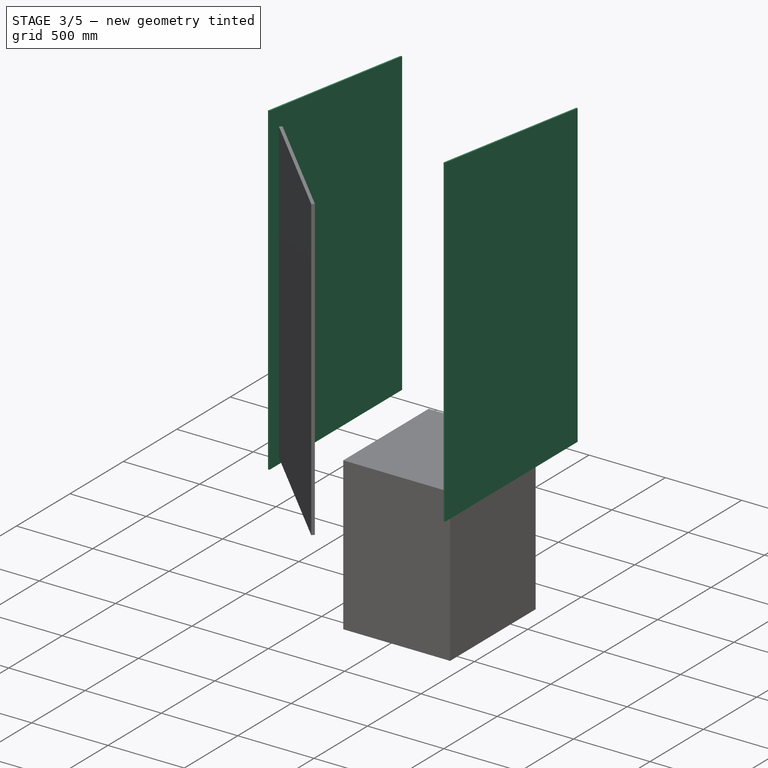
[diagram: stage 3 of 5 — iso view after this stage's code; geometry added in this stage tinted green]
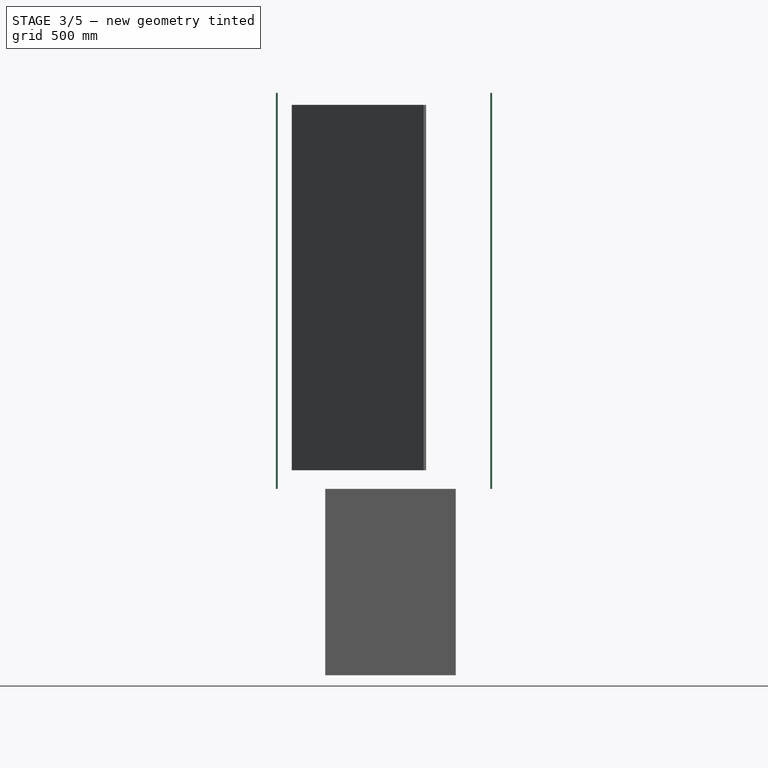
[diagram: stage 3 of 5 — front view after this stage's code; geometry added in this stage tinted green]
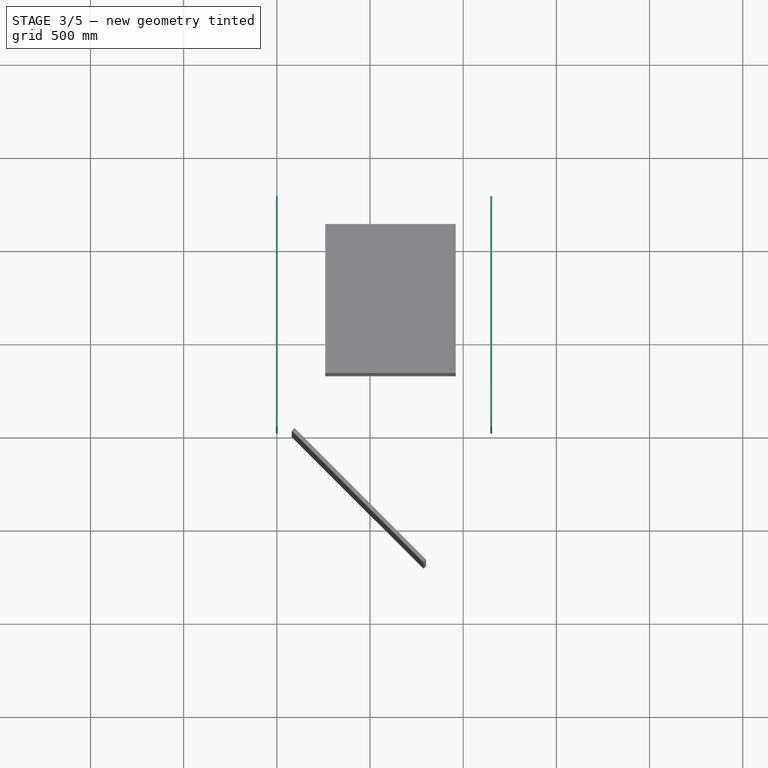
[diagram: stage 3 of 5 — top view after this stage's code; geometry added in this stage tinted green]
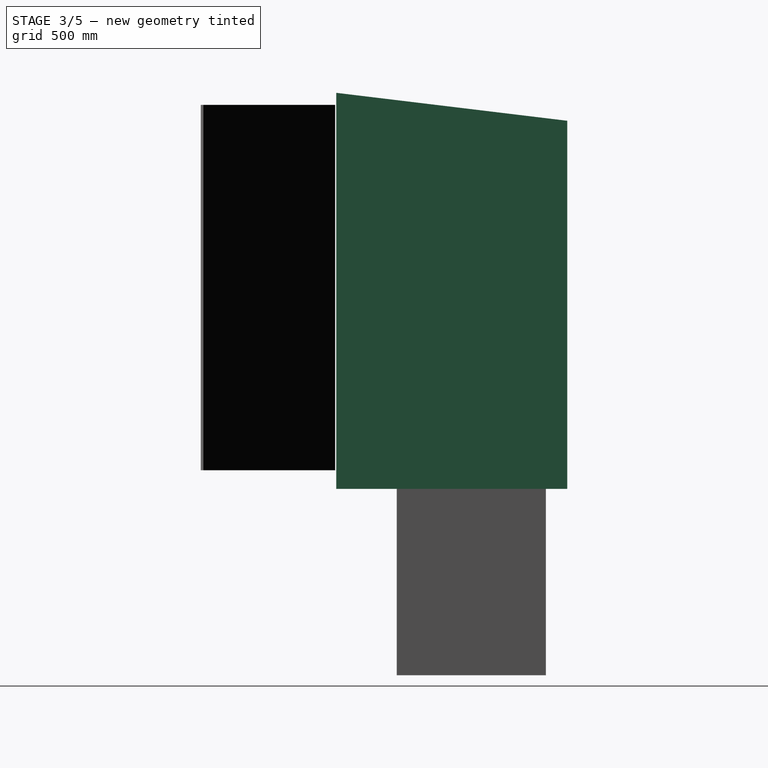
[diagram: stage 3 of 5 — right view after this stage's code; geometry added in this stage tinted green]
FEATURE [Sketcher::SketchObject] Sketch010
  ArcFitTolerance = 1e-06
  ExternalGeometry = -> [Extrude004,Extrude005]
  FullyConstrained = true
  MakeInternals = false
  Placement = pos=(575,1195,125) rot=(0,0,1;0rad)
  sketch-geometry (8):
    g0: LineSegment StartX=545 StartY=50 StartZ=0 EndX=445 EndY=50 EndZ=0
    g1: LineSegment StartX=445 StartY=50 StartZ=0 EndX=445 EndY=25 EndZ=0
    g2: LineSegment StartX=445 StartY=25 StartZ=0 EndX=545 EndY=25 EndZ=0
    g3: LineSegment StartX=545 StartY=25 StartZ=0 EndX=545 EndY=50 EndZ=0
    g4: LineSegment StartX=-545 StartY=50 StartZ=0 EndX=-545 EndY=25 EndZ=0
    g5: LineSegment StartX=-545 StartY=25 StartZ=0 EndX=-445 EndY=25 EndZ=0
    g6: LineSegment StartX=-445 StartY=25 StartZ=0 EndX=-445 EndY=50 EndZ=0
    g7: LineSegment StartX=-445 StartY=50 StartZ=0 EndX=-545 EndY=50 EndZ=0
  constraints (24):
    c: Coincident(g0,g1)
    c: Coincident(g1,g2)
    c: Coincident(g2,g3)
    c: Coincident(g3,g0)
    c: Horizontal(g0)
    c: Horizontal(g2)
    c: Vertical(g1)
    c: Vertical(g3)
    c: Distance(g1,g3) = 100
    c: Distance(g0,g2) = 25
    c: PointOnObject(g0,g-3)
    c: Coincident(g4,g5)
    c: Coincident(g5,g6)
    c: Coincident(g6,g7)
    c: Coincident(g7,g4)
    c: Vertical(g4)
    c: Vertical(g6)
    c: Horizontal(g5)
    c: Horizontal(g7)
    c: Distance(g4,g6) = 100
    c: Distance(g5,g7) = 25
    c: PointOnObject(g4,g-3)
    c: Distance(g-4,g4) = 25
    c: Distance(g-5,g3) = 25
FEATURE [Part::Extrusion] Extrude006  label="Задние стойки2"
  Base = -> Sketch010
  Dir = (0,0,1)
  DirMode = 2
  FaceMakerClass = Part::FaceMakerBullseye
  FaceMakerMode = 3
  LengthFwd = 1850
  LengthRev = 0
  Solid = true
  Symmetric = false
FEATURE [Sketcher::SketchObject] Sketch013
  ArcFitTolerance = 1e-06
  ExternalGeometry = -> [Extrude006,Extrude005]
  FullyConstrained = true
  MakeInternals = false
  Placement = pos=(1070,1220,1050) rot=(1,0,0;1.5708rad)
  sketch-geometry (8):
    g0: LineSegment StartX=-1040 StartY=925 StartZ=0 EndX=-1040 EndY=825 EndZ=0
    g1: LineSegment StartX=-1040 StartY=825 StartZ=0 EndX=50 EndY=825 EndZ=0
    g2: LineSegment StartX=50 StartY=825 StartZ=0 EndX=50 EndY=925 EndZ=0
    g3: LineSegment StartX=50 StartY=925 StartZ=0 EndX=-1040 EndY=925 EndZ=0
    g4: LineSegment StartX=-1040 StartY=125 StartZ=0 EndX=-1040 EndY=25 EndZ=0
    g5: LineSegment StartX=-1040 StartY=25 StartZ=0 EndX=50 EndY=25 EndZ=0
    g6: LineSegment StartX=50 StartY=25 StartZ=0 EndX=50 EndY=125 EndZ=0
    g7: LineSegment StartX=50 StartY=125 StartZ=0 EndX=-1040 EndY=125 EndZ=0
  constraints (23):
    c: Coincident(g0,g1)
    c: Coincident(g1,g2)
    c: Coincident(g2,g3)
    c: Coincident(g3,g0)
    c: Vertical(g0)
    c: Vertical(g2)
    c: Horizontal(g1)
    c: Horizontal(g3)
    c: Distance(g1,g3) = 100
    c: Coincident(g0,g-8)
    c: PointOnObject(g1,g-5)
    c: Coincident(g4,g5)
    c: Coincident(g5,g6)
    c: Coincident(g6,g7)
    c: Coincident(g7,g4)
    c: Vertical(g4)
    c: Vertical(g6)
    c: Horizontal(g5)
    c: Horizontal(g7)
    c: Distance(g4,g6) = 1090
    c: PointOnObject(g6,g-5)
    c: Distance(g6,g5) = 100
    c: Distance(g7,g1) = 700
FEATURE [Part::Extrusion] Extrude009  label="Задние перемычки"
  Base = -> Sketch013
  Dir = (0,-1,2e-16)
  DirMode = 2
  FaceMakerClass = Part::FaceMakerBullseye
  FaceMakerMode = 3
  LengthFwd = 25
  LengthRev = 0
  Solid = true
  Symmetric = false
FEATURE [Sketcher::SketchObject] Sketch017
  ArcFitTolerance = 1e-06
  ExternalGeometry = -> [Extrude007,Structure002,Extrude005,Structure003]
  FullyConstrained = true
  MakeInternals = false
  Placement = pos=(1145,1195,1050) rot=(0.57735,0.57735,0.57735;2.0944rad)
  sketch-geometry (4):
    g0: LineSegment StartX=-1190 StartY=1075 StartZ=0 EndX=50 EndY=925 EndZ=0
    g1: LineSegment StartX=50 StartY=925 StartZ=0 EndX=50 EndY=-1050 EndZ=0
    g2: LineSegment StartX=50 StartY=-1050 StartZ=0 EndX=-1190 EndY=-1050 EndZ=0
    g3: LineSegment StartX=-1190 StartY=-1050 StartZ=0 EndX=-1190 EndY=1075 EndZ=0
  constraints (8):
    c: Coincident(g-3,g0)
    c: Coincident(g0,g-5)
    c: Coincident(g0,g1)
    c: Coincident(g1,g-6)
    c: Coincident(g1,g2)
    c: Coincident(g2,g-4)
    c: Coincident(g2,g3)
    c: Coincident(g3,g0)
FEATURE [Part::Extrusion] Extrude016  label="Лист левый осб 10мм"
  Base = -> Sketch017
  Dir = (1,0,0)
  DirMode = 2
  FaceMakerClass = Part::FaceMakerBullseye
  FaceMakerMode = 3
  LengthFwd = 10
  LengthRev = 0
  Solid = true
  Symmetric = false
FEATURE [Sketcher::SketchObject] Sketch018
  ArcFitTolerance = 1e-06
  ExternalGeometry = -> [Axis001,Axis,Structure003,Extrude006,Extrude005,Extrude009]
  FullyConstrained = true
  MakeInternals = false
  Placement = pos=(1070,1245,1050) rot=(0,0.707107,0.707107;3.14159rad)
  sketch-geometry (4):
    g0: LineSegment StartX=-75 StartY=925 StartZ=0 EndX=1065 EndY=925 EndZ=0
    g1: LineSegment StartX=1065 StartY=925 StartZ=0 EndX=1065 EndY=-1050 EndZ=0
    g2: LineSegment StartX=1065 StartY=-1050 StartZ=0 EndX=-75 EndY=-1050 EndZ=0
    g3: LineSegment StartX=-75 StartY=-1050 StartZ=0 EndX=-75 EndY=925 EndZ=0
  constraints (8):
    c: Coincident(g-10,g0)
    c: Coincident(g0,g-7)
    c: Coincident(g0,g1)
    c: Coincident(g1,g-5)
    c: Coincident(g1,g2)
    c: Coincident(g2,g-11)
    c: Coincident(g2,g3)
    c: Coincident(g3,g0)
FEATURE [Part::Extrusion] Extrude017  label="Стена задняя"
  Base = -> Sketch018
  Dir = (0,1,-2e-16)
  DirMode = 2
  FaceMakerClass = Part::FaceMakerBullseye
  FaceMakerMode = 3
  LengthFwd = 10
  LengthRev = 0
  Solid = true
  Symmetric = false
FEATURE [Sketcher::SketchObject] Sketch019
  ArcFitTolerance = 1e-06
  ExternalGeometry = -> [Extrude005,Extrude007,Axis001,Structure002,Extrude017]
  FullyConstrained = true
  MakeInternals = false
  Placement = pos=(5,1195,1050) rot=(0.57735,-0.57735,-0.57735;2.0944rad)
  sketch-geometry (4):
    g0: LineSegment StartX=-50 StartY=-1050 StartZ=0 EndX=1190 EndY=-1050 EndZ=0
    g1: LineSegment StartX=1190 StartY=-1050 StartZ=0 EndX=1190 EndY=1075 EndZ=0
    g2: LineSegment StartX=1190 StartY=1075 StartZ=0 EndX=-50 EndY=925 EndZ=0
    g3: LineSegment StartX=-50 StartY=925 StartZ=0 EndX=-50 EndY=-1050 EndZ=0
  constraints (8):
    c: Coincident(g-9,g0)
    c: Coincident(g0,g-8)
    c: Coincident(g0,g1)
    c: Coincident(g1,g-6)
    c: Coincident(g1,g2)
    c: Coincident(g2,g-9)
    c: Coincident(g2,g3)
    c: Coincident(g3,g0)
FEATURE [Part::Extrusion] Extrude018  label="Стена правая"
  Base = -> Sketch019
  Dir = (-1,0,0)
  DirMode = 2
  FaceMakerClass = Part::FaceMakerBullseye
  FaceMakerMode = 3
  LengthFwd = 10
  LengthRev = 0
  Solid = true
  Symmetric = false
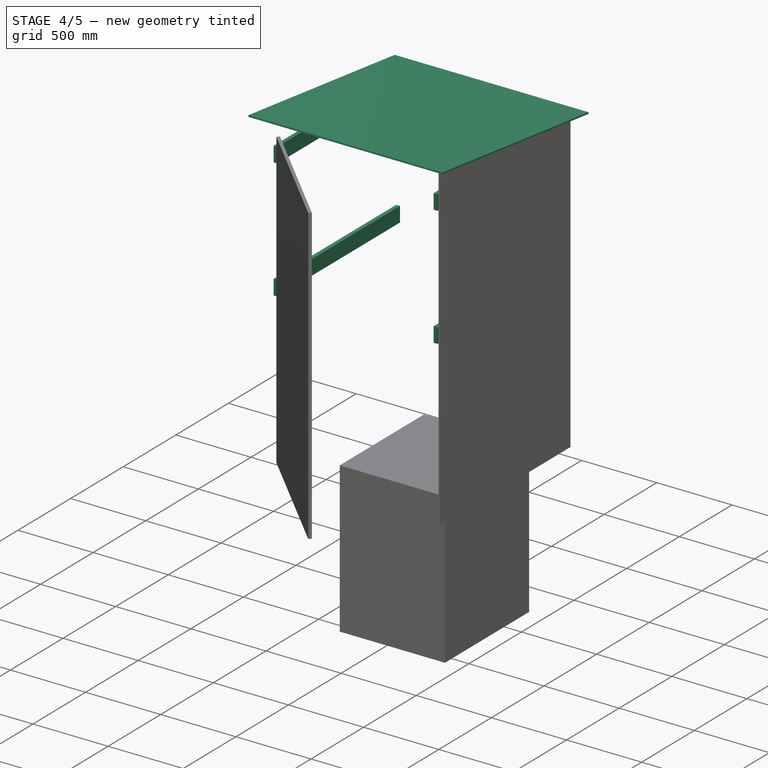
[diagram: stage 4 of 5 — iso view after this stage's code; geometry added in this stage tinted green]
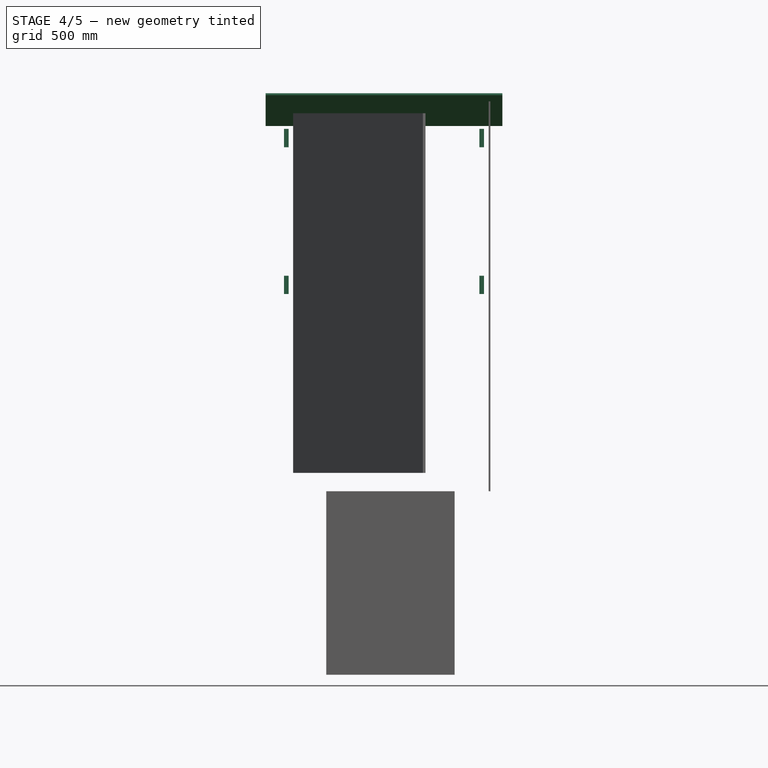
[diagram: stage 4 of 5 — front view after this stage's code; geometry added in this stage tinted green]
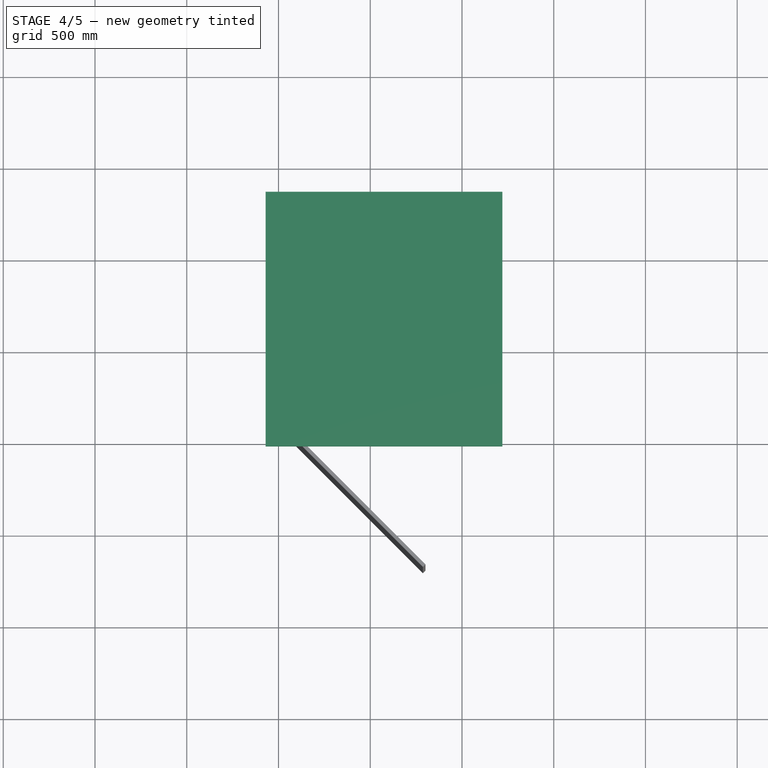
[diagram: stage 4 of 5 — top view after this stage's code; geometry added in this stage tinted green]
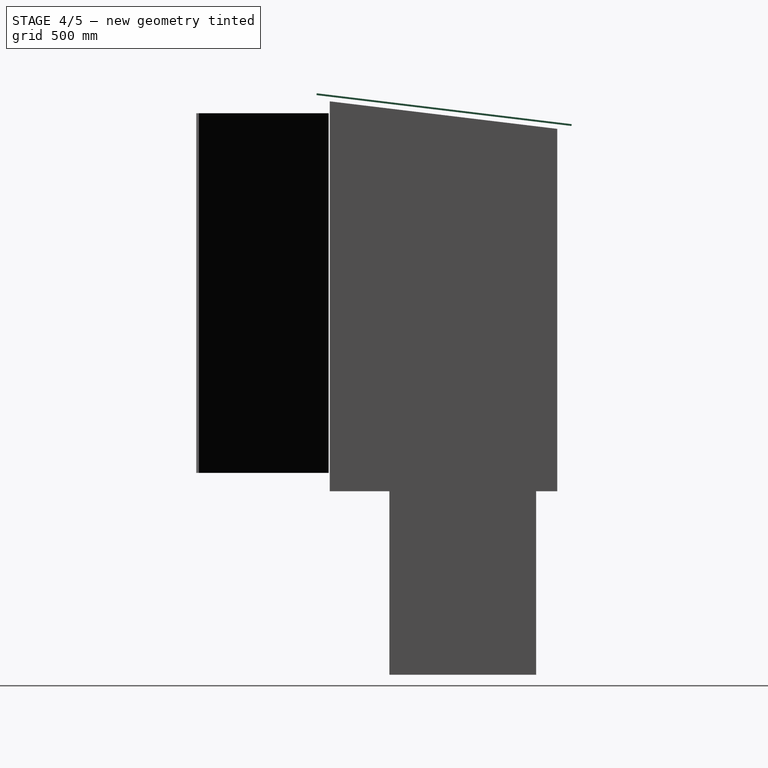
[diagram: stage 4 of 5 — right view after this stage's code; geometry added in this stage tinted green]
FEATURE [Sketcher::SketchObject] Sketch014
  ArcFitTolerance = 1e-06
  ExternalGeometry = -> [Extrude006,Extrude005,Extrude007,Extrude009,Extrude008]
  FullyConstrained = true
  MakeInternals = false
  Placement = pos=(1132.5,1195,1975) rot=(0,0,1;0rad)
  sketch-geometry (4):
    g0: LineSegment StartX=-12.5 StartY=25 StartZ=0 EndX=-37.5 EndY=25 EndZ=0
    g1: LineSegment StartX=-37.5 StartY=25 StartZ=0 EndX=-37.5 EndY=-1140 EndZ=0
    g2: LineSegment StartX=-37.5 StartY=-1140 StartZ=0 EndX=-12.5 EndY=-1140 EndZ=0
    g3: LineSegment StartX=-12.5 StartY=-1140 StartZ=0 EndX=-12.5 EndY=25 EndZ=0
  constraints (11):
    c: Coincident(g0,g1)
    c: Coincident(g1,g2)
    c: Coincident(g2,g3)
    c: Coincident(g3,g0)
    c: Horizontal(g0)
    c: Horizontal(g2)
    c: Vertical(g1)
    c: Vertical(g3)
    c: Distance(g1,g3) = 25
    c: Coincident(g0,g-3)
    c: PointOnObject(g1,g-9)
FEATURE [Part::Extrusion] Extrude010  label="перемычка бок1"
  Base = -> Sketch014
  Dir = (0,0,1)
  DirMode = 2
  FaceMakerClass = Part::FaceMakerBullseye
  FaceMakerMode = 3
  LengthFwd = 0
  LengthRev = 100
  Placement = pos=(0,-25,0) rot=(0,0,1;0rad)
  Solid = true
  Symmetric = false
FEATURE [Part::Extrusion] Extrude011  label="перемычка бок002"
  Base = -> Sketch014
  Dir = (0,0,1)
  DirMode = 2
  FaceMakerClass = Part::FaceMakerBullseye
  FaceMakerMode = 3
  LengthFwd = 0
  LengthRev = 100
  Placement = pos=(-1065,-25,0) rot=(0,0,1;0rad)
  Solid = true
  Symmetric = false
FEATURE [Part::Extrusion] Extrude012  label="перемычка бок003"
  Base = -> Sketch014
  Dir = (0,0,1)
  DirMode = 2
  FaceMakerClass = Part::FaceMakerBullseye
  FaceMakerMode = 3
  LengthFwd = 0
  LengthRev = 100
  Placement = pos=(0,-25,-800.328) rot=(0,0,1;0rad)
  Solid = true
  Symmetric = false
FEATURE [Part::Extrusion] Extrude013  label="перемычка бок004"
  Base = -> Sketch014
  Dir = (0,0,1)
  DirMode = 2
  FaceMakerClass = Part::FaceMakerBullseye
  FaceMakerMode = 3
  LengthFwd = 0
  LengthRev = 100
  Placement = pos=(-1065,-25,-800.328) rot=(0,0,1;0rad)
  Solid = true
  Symmetric = false
FEATURE [Sketcher::SketchObject] Sketch020
  ArcFitTolerance = 1e-06
  ExternalGeometry = -> [Extrude008,Extrude009,Extrude018]
  FullyConstrained = true
  MakeInternals = false
  Placement = pos=(1150,625,2050) rot=(-0.060047,0.060047,0.996388;1.57441rad)
  sketch-geometry (8):
    g0: LineSegment StartX=599.701 StartY=1120 StartZ=0 EndX=-700.299 EndY=1120 EndZ=0
    g1: LineSegment StartX=-700.299 StartY=1120 StartZ=0 EndX=-700.299 EndY=1020 EndZ=0
    g2: LineSegment StartX=-700.299 StartY=1020 StartZ=0 EndX=599.701 EndY=1020 EndZ=0
    g3: LineSegment StartX=599.701 StartY=1020 StartZ=0 EndX=599.701 EndY=1120 EndZ=0
    g4: LineSegment StartX=599.701 StartY=30 StartZ=0 EndX=599.701 EndY=130 EndZ=0
    g5: LineSegment StartX=599.701 StartY=130 StartZ=0 EndX=-700.299 EndY=130 EndZ=0
    g6: LineSegment StartX=-700.299 StartY=130 StartZ=0 EndX=-700.299 EndY=30 EndZ=0
    g7: LineSegment StartX=-700.299 StartY=30 StartZ=0 EndX=599.701 EndY=30 EndZ=0
  constraints (22):
    c: Coincident(g0,g1)
    c: Coincident(g1,g2)
    c: Coincident(g2,g3)
    c: Coincident(g3,g0)
    c: Horizontal(g0)
    c: Horizontal(g2)
    c: Vertical(g1)
    c: Vertical(g3)
    c: Distance(g1,g3) = 1300
    c: Distance(g0,g2) = 100
    c: Coincident(g0,g-4)
    c: Coincident(g4,g5)
    c: Coincident(g5,g6)
    c: Coincident(g6,g7)
    c: Coincident(g7,g4)
    c: Vertical(g4)
    c: Vertical(g6)
    c: Horizontal(g5)
    c: Horizontal(g7)
    c: Distance(g4,g6) = 1300
    c: Distance(g5,g7) = 100
    c: Coincident(g4,g-4)
FEATURE [Part::Extrusion] Extrude019  label="Доски крыши"
  Base = -> Sketch020
  Dir = (0,0.120092,0.992763)
  DirMode = 2
  FaceMakerClass = Part::FaceMakerBullseye
  FaceMakerMode = 3
  LengthFwd = 25
  LengthRev = 0
  Solid = true
  Symmetric = false
FEATURE [Sketcher::SketchObject] Sketch021
  ArcFitTolerance = 1e-06
  ExternalGeometry = -> [Extrude019]
  FullyConstrained = true
  MakeInternals = false
  Placement = pos=(1070,578.067,2080.86) rot=(-0.060047,0.060047,0.996388;1.57441rad)
  sketch-geometry (4):
    g0: LineSegment StartX=-650 StartY=-150 StartZ=0 EndX=750 EndY=-150 EndZ=0
    g1: LineSegment StartX=750 StartY=-150 StartZ=0 EndX=750 EndY=1140 EndZ=0
    g2: LineSegment StartX=750 StartY=1140 StartZ=0 EndX=-650 EndY=1140 EndZ=0
    g3: LineSegment StartX=-650 StartY=1140 StartZ=0 EndX=-650 EndY=-150 EndZ=0
  constraints (12):
    c: Coincident(g0,g1)
    c: Coincident(g1,g2)
    c: Coincident(g2,g3)
    c: Coincident(g3,g0)
    c: Horizontal(g0)
    c: Horizontal(g2)
    c: Vertical(g1)
    c: Vertical(g3)
    c: PointOnObject(g-4,g3)
    c: Distance(g-4,g0) = 100
    c: Distance(g-6,g2) = 100
    c: DistanceX(g2,g2) = 1400
FEATURE [Part::Extrusion] Extrude020  label="Крыша лист осб"
  Base = -> Sketch021
  Dir = (0,0.120092,0.992763)
  DirMode = 2
  FaceMakerClass = Part::FaceMakerBullseye
  FaceMakerMode = 3
  LengthFwd = 10
  LengthRev = 0
  Solid = true
  Symmetric = false
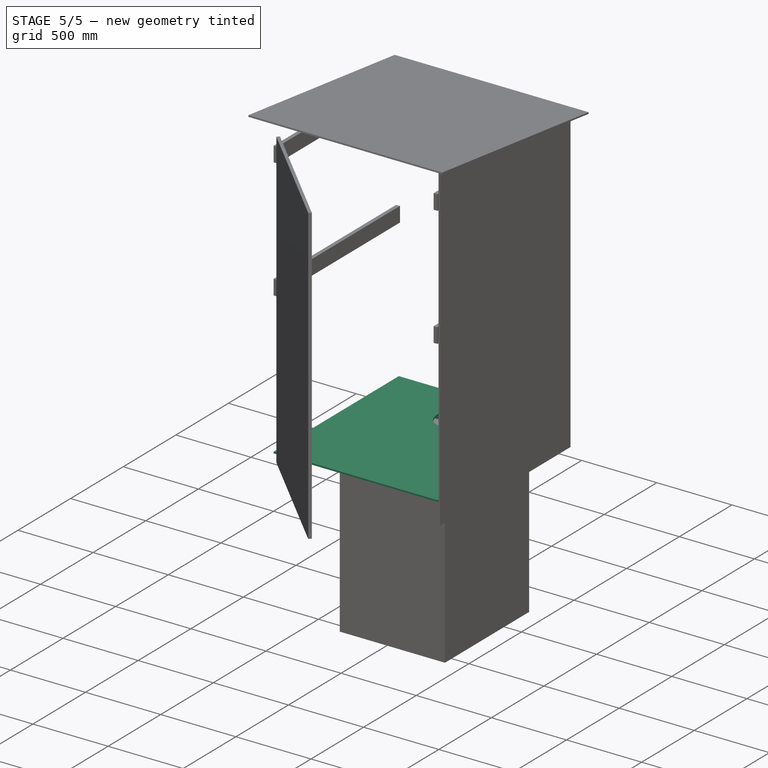
[diagram: stage 5 of 5 — iso view after this stage's code; geometry added in this stage tinted green]
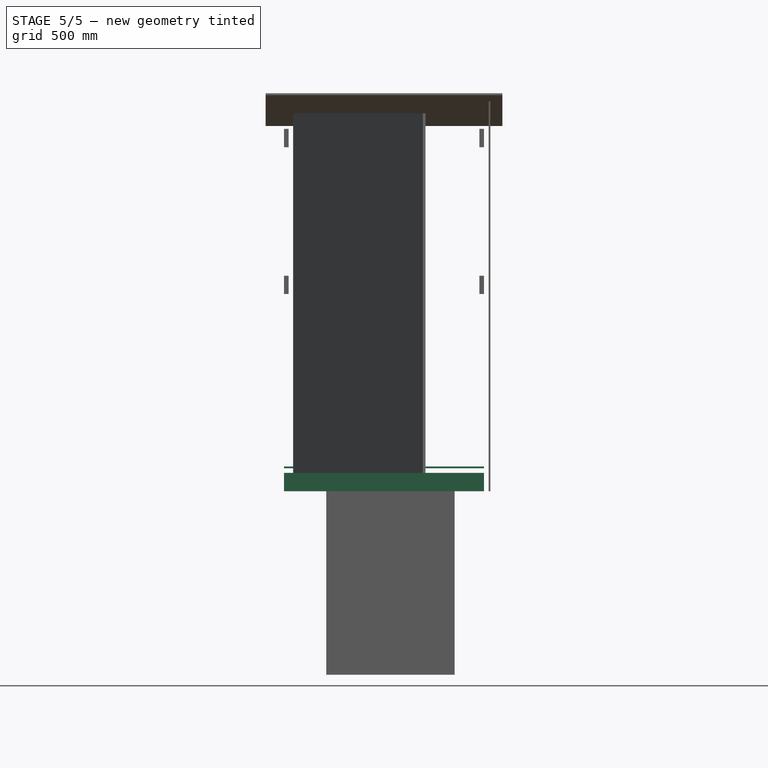
[diagram: stage 5 of 5 — front view after this stage's code; geometry added in this stage tinted green]
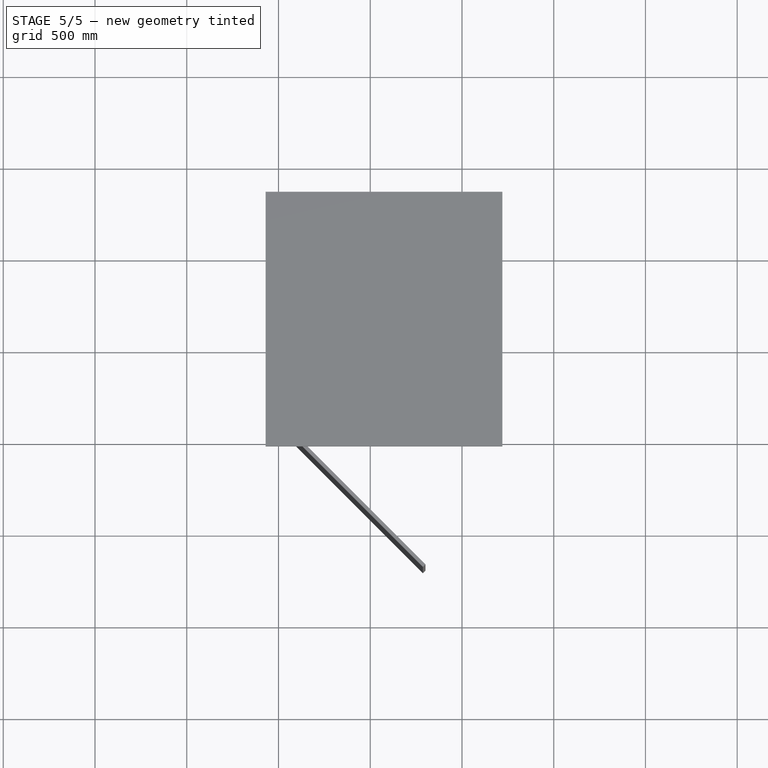
[diagram: stage 5 of 5 — top view after this stage's code; geometry added in this stage tinted green]
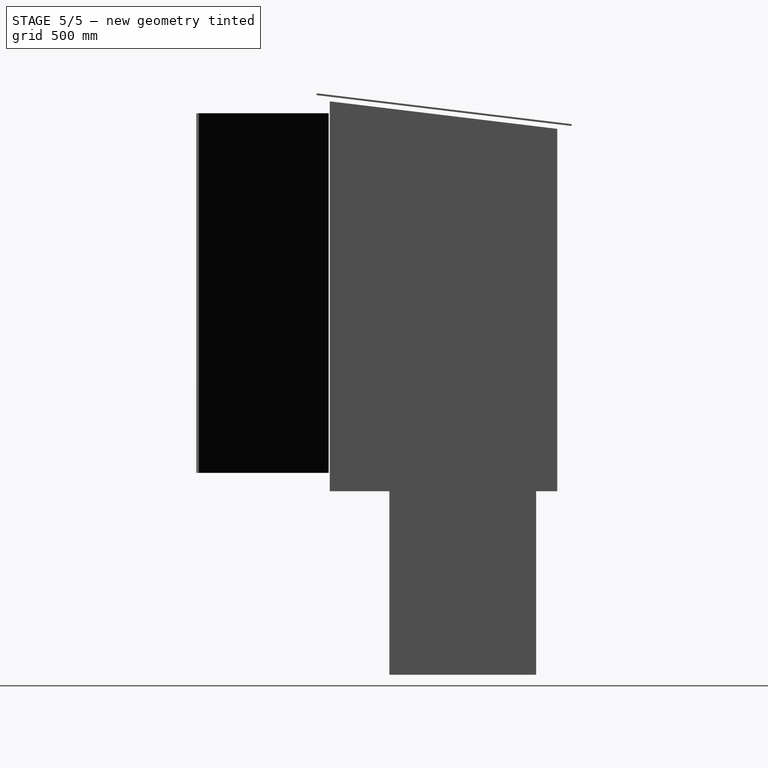
[diagram: stage 5 of 5 — right view after this stage's code; geometry added in this stage tinted green]
FEATURE [Sketcher::SketchObject] Sketch006
  ArcFitTolerance = 1e-06
  ExternalGeometry = -> [Structure001,Structure,Structure002,Structure003]
  FullyConstrained = true
  MakeInternals = false
  Placement = pos=(17.5,625,100) rot=(0,0,1;0rad)
  sketch-geometry (4):
    g0: LineSegment StartX=12.5 StartY=-70 StartZ=0 EndX=12.5 EndY=-95 EndZ=0
    g1: LineSegment StartX=12.5 StartY=-95 StartZ=0 EndX=1102.5 EndY=-95 EndZ=0
    g2: LineSegment StartX=1102.5 StartY=-95 StartZ=0 EndX=1102.5 EndY=-70 EndZ=0
    g3: LineSegment StartX=1102.5 StartY=-70 StartZ=0 EndX=12.5 EndY=-70 EndZ=0
  constraints (12):
    c: Coincident(g0,g1)
    c: Coincident(g1,g2)
    c: Coincident(g2,g3)
    c: Coincident(g3,g0)
    c: Vertical(g0)
    c: Vertical(g2)
    c: Horizontal(g1)
    c: Horizontal(g3)
    c: Distance(g0,g2) = 1090
    c: Distance(g1,g-5) = 500
    c: PointOnObject(g1,g-4)
    c: DistanceY(g2,g2) = 25
FEATURE [Part::Extrusion] Extrude002  label="Доска5"
  Base = -> Sketch006
  Dir = (0,0,1)
  DirMode = 2
  FaceMakerClass = Part::FaceMakerBullseye
  FaceMakerMode = 3
  LengthFwd = 0
  LengthRev = 100
  Solid = true
  Symmetric = false
FEATURE [Sketcher::SketchObject] Sketch007
  ArcFitTolerance = 1e-06
  ExternalGeometry = -> [Structure001,Structure003,Structure,Extrude002]
  FullyConstrained = true
  MakeInternals = false
  Placement = pos=(575,1232.5,100) rot=(0,0,-1;1.5708rad)
  sketch-geometry (4):
    g0: LineSegment StartX=82.5 StartY=-545 StartZ=0 EndX=107.5 EndY=-545 EndZ=0
    g1: LineSegment StartX=107.5 StartY=-545 StartZ=0 EndX=107.5 EndY=545 EndZ=0
    g2: LineSegment StartX=107.5 StartY=545 StartZ=0 EndX=82.5 EndY=545 EndZ=0
    g3: LineSegment StartX=82.5 StartY=545 StartZ=0 EndX=82.5 EndY=-545 EndZ=0
  constraints (12):
    c: Coincident(g0,g1)
    c: Coincident(g1,g2)
    c: Coincident(g2,g3)
    c: Coincident(g3,g0)
    c: Horizontal(g0)
    c: Horizontal(g2)
    c: Vertical(g1)
    c: Vertical(g3)
    c: Distance(g1,g3) = 25
    c: PointOnObject(g0,g-3)
    c: PointOnObject(g1,g-5)
    c: Distance(g3,g-4) = 70
FEATURE [Part::Extrusion] Extrude003  label="Доска6"
  Base = -> Sketch007
  Dir = (0,0,1)
  DirMode = 2
  FaceMakerClass = Part::FaceMakerBullseye
  FaceMakerMode = 3
  LengthFwd = 0
  LengthRev = 100
  Solid = true
  Symmetric = false
FEATURE [Sketcher::SketchObject] Sketch015
  ArcFitTolerance = 1e-06
  ExternalGeometry = -> [Extrude006,Extrude005,Extrude007]
  FullyConstrained = true
  MakeInternals = false
  Placement = pos=(575,575,125) rot=(0,0,1;0rad)
  sketch-geometry (4):
    g0: LineSegment StartX=-545 StartY=645 StartZ=0 EndX=-545 EndY=-545 EndZ=0
    g1: LineSegment StartX=-545 StartY=-545 StartZ=0 EndX=545 EndY=-545 EndZ=0
    g2: LineSegment StartX=545 StartY=-545 StartZ=0 EndX=545 EndY=645 EndZ=0
    g3: LineSegment StartX=545 StartY=645 StartZ=0 EndX=-545 EndY=645 EndZ=0
  constraints (10):
    c: Coincident(g0,g1)
    c: Coincident(g1,g2)
    c: Coincident(g2,g3)
    c: Coincident(g3,g0)
    c: Vertical(g0)
    c: Vertical(g2)
    c: Horizontal(g1)
    c: Horizontal(g3)
    c: Coincident(g0,g-3)
    c: Coincident(g1,g-7)
FEATURE [Part::Extrusion] Extrude014  label="Пол"
  Base = -> Sketch015
  Dir = (0,0,1)
  DirMode = 2
  FaceMakerClass = Part::FaceMakerBullseye
  FaceMakerMode = 3
  LengthFwd = 10
  LengthRev = 0
  Solid = true
  Symmetric = false
FEATURE [Sketcher::SketchObject] Sketch016
  ArcFitTolerance = 1e-06
  FullyConstrained = true
  MakeInternals = false
  Placement = pos=(575,625,135) rot=(0,0,1;0rad)
  sketch-geometry (5):
    g0: Ellipse CenterX=-3.92154e-05 CenterY=320 CenterZ=0 NormalX=0 NormalY=0 NormalZ=1 MajorRadius=120 MinorRadius=90 AngleXU=-1.5708
    g1: LineSegment [constr] StartX=-7.84308e-05 StartY=200 StartZ=0 EndX=0 EndY=440 EndZ=0
    g2: LineSegment [constr] StartX=90 StartY=320 StartZ=0 EndX=-90 EndY=320 EndZ=0
    g3: GeomPoint [constr] X=-6.51539e-05 Y=240.627 Z=0
    g4: GeomPoint [constr] X=-1.32768e-05 Y=399.373 Z=0
  constraints (6):
    c: InternalAlignment(g1-g4 -> g0) x4
    c: Distance(g0,g1) = 120
    c: Angle(g1) = 1.5708
    c: Distance(g0,g2) = 90
    c: PointOnObject(g1,g-2)
    c: DistanceY(g-1,g1) = 200
FEATURE [Part::Extrusion] Extrude015
  Base = -> Sketch016
  Dir = (0,0,1)
  DirMode = 2
  FaceMakerClass = Part::FaceMakerBullseye
  FaceMakerMode = 3
  LengthFwd = 0
  LengthRev = 10
  Solid = true
  Symmetric = false
FEATURE [Part::Cut] Cut  label="пол в туалете"
  Base = -> Extrude014
  Refine = true
  Tool = -> Extrude015
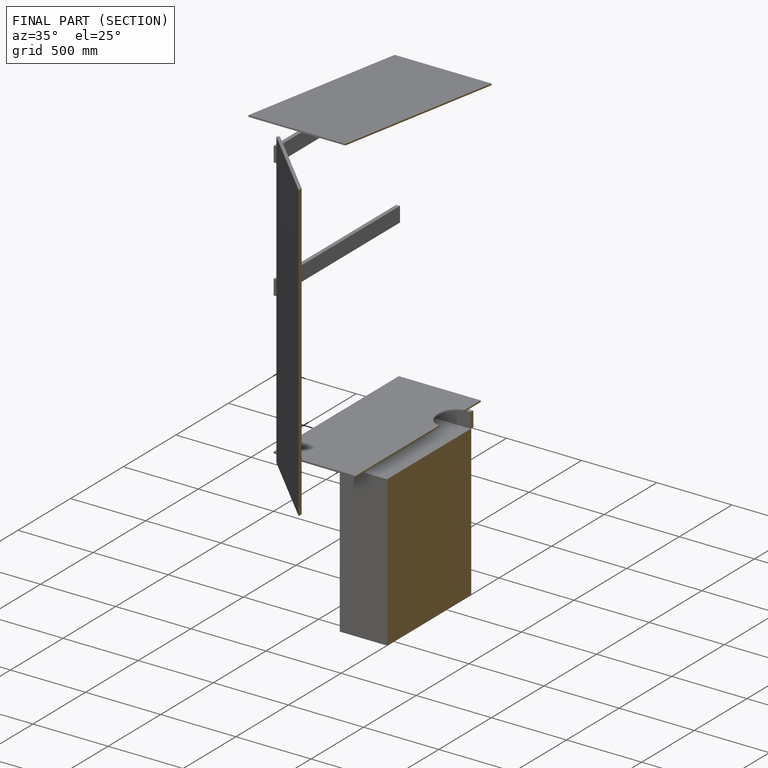
[diagram: finished part — half-section view (interior)]
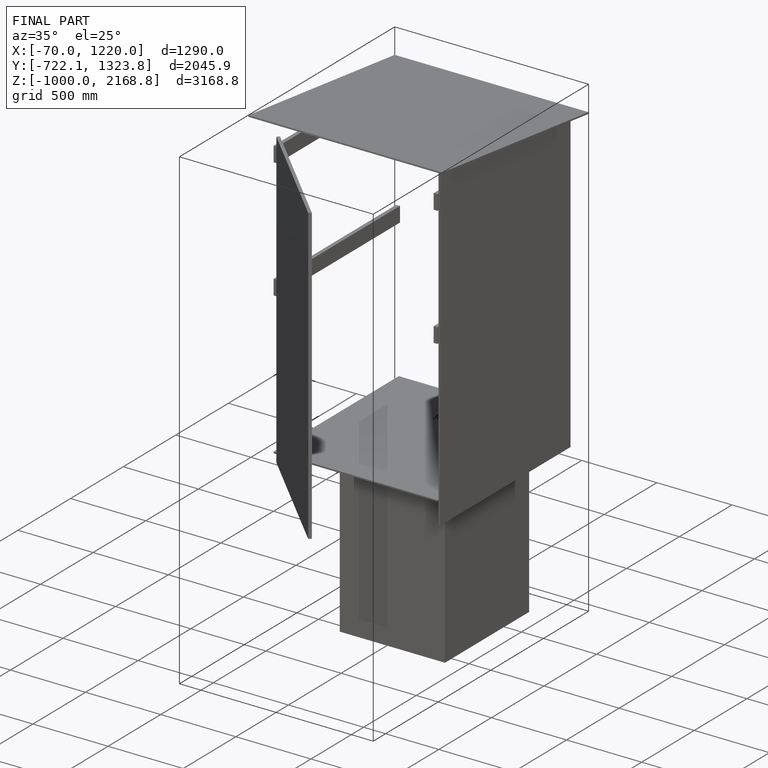
[diagram: finished part — iso view with bounding-box wireframe]
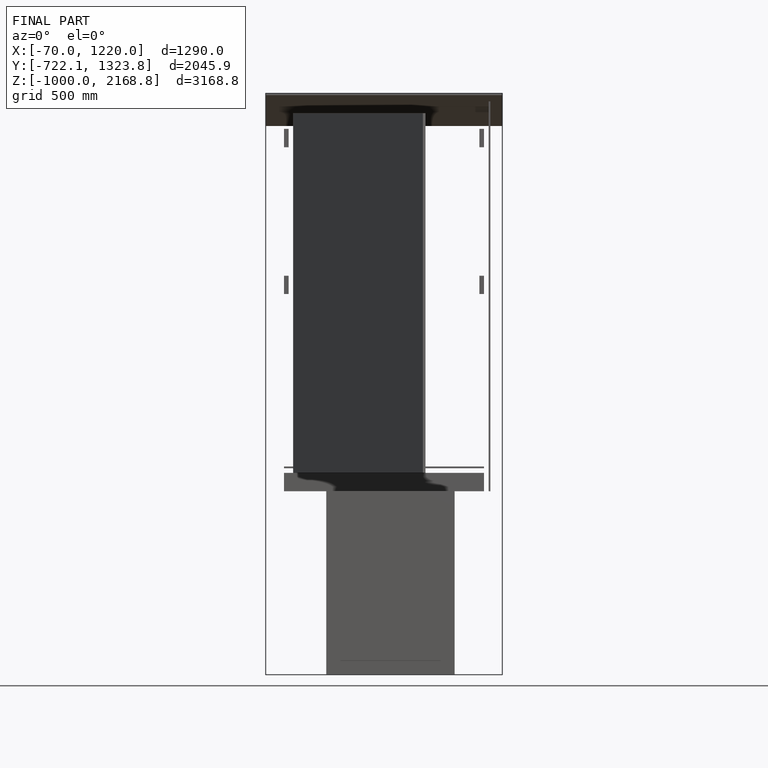
[diagram: finished part — front view with bounding-box wireframe]
